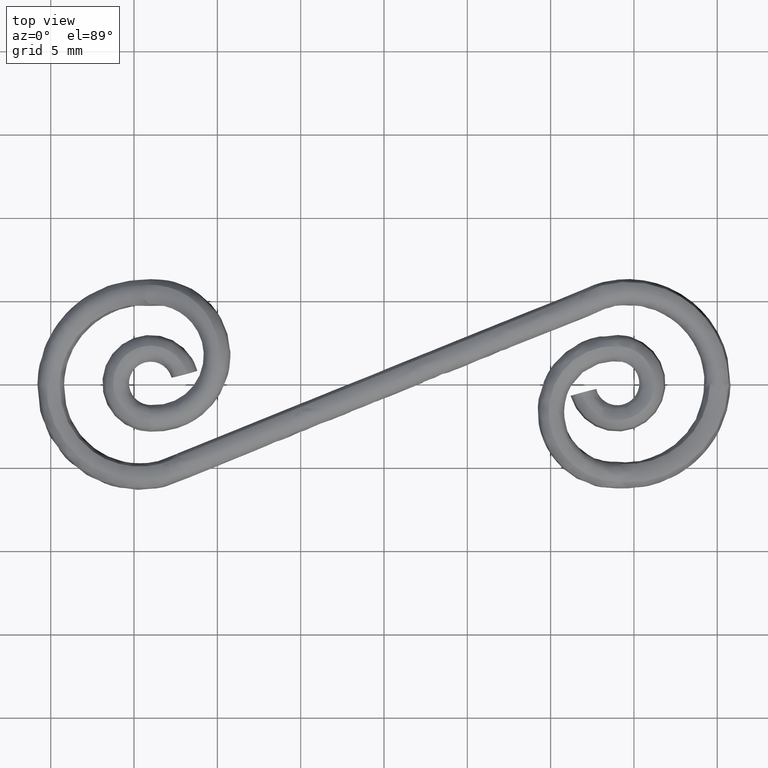
[diagram: clean part render]
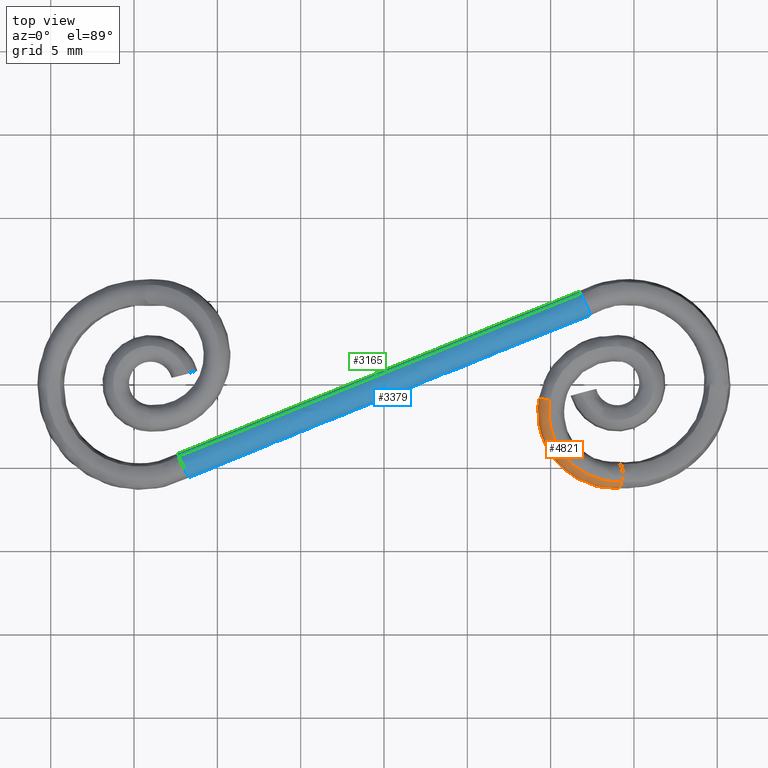
[diagram: same view with three faces highlighted in distinct colors, each labeled with its STEP entity id]
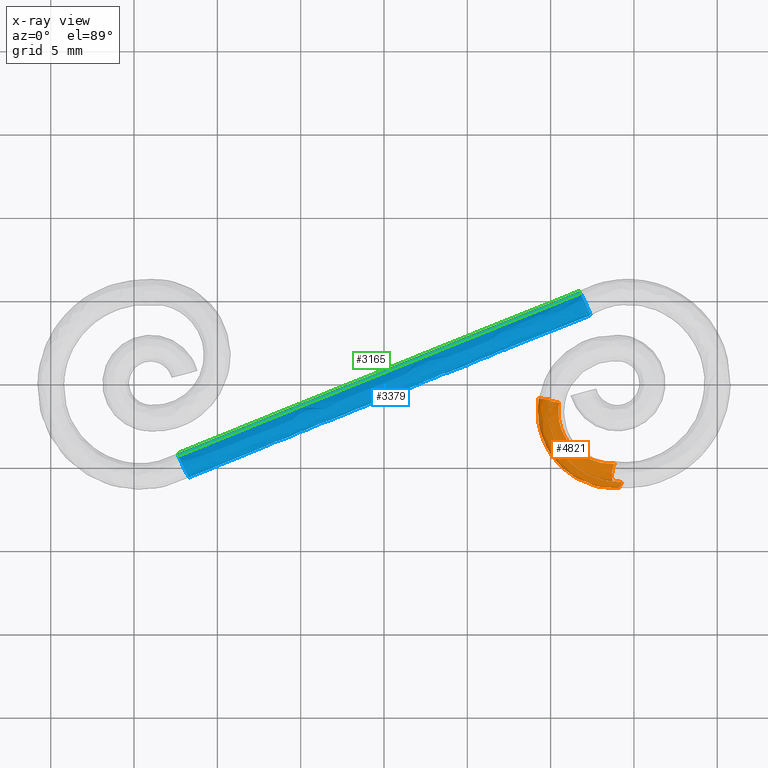
[diagram: x-ray of the same camera — body ghosted, the three highlighted faces saturated]
A machine part, top view with three faces highlighted in distinct colors.
The next image is the same camera in x-ray (body ghosted, the three faces saturated) — at least one of them is partly hidden behind the body in this view.
Their STEP definitions:

[orange] entity #4821 — the highlighted face is a freeform B-spline surface patch.
#4263=CARTESIAN_POINT('',(14.275470363113760,-5.912738055771345,2.158219490846191));
#4264=VERTEX_POINT('',#4263);
#4286=CARTESIAN_POINT('',(13.684754157161381,-5.482536158725590,0.809404913310558));
#4287=VERTEX_POINT('',#4286);
#4288=CARTESIAN_POINT('',(13.684754157161381,-5.482536158725590,0.809404913310558));
#4289=CARTESIAN_POINT('',(13.684576490044400,-5.508610972948729,0.809483216526367));
#4290=CARTESIAN_POINT('',(13.684913665367670,-5.535095821323730,0.810740220724820));
#4291=CARTESIAN_POINT('',(13.686621256978000,-5.587092043873896,0.815593179759634));
#4292=CARTESIAN_POINT('',(13.687987090674371,-5.612810500074414,0.819181420768248));
#4293=CARTESIAN_POINT('',(13.693633051143090,-5.689120296228069,0.833458777378329));
#4294=CARTESIAN_POINT('',(13.699460241575199,-5.738866817549171,0.847657401204790));
#4295=CARTESIAN_POINT('',(13.715232803108590,-5.836111766803879,0.885393025158458));
#4296=CARTESIAN_POINT('',(13.724986976938011,-5.882325775637417,0.908470556163974));
#4297=CARTESIAN_POINT('',(13.742062595196950,-5.947268644175123,0.948566068072047));
#4298=CARTESIAN_POINT('',(13.748175190501270,-5.968236987429188,0.962875707515571));
#4299=CARTESIAN_POINT('',(13.761259741498280,-6.008787132893043,0.993422581257308));
#4300=CARTESIAN_POINT('',(13.768274633340340,-6.028471171746492,1.009759449826938));
#4301=CARTESIAN_POINT('',(13.790294700845250,-6.084365442708921,1.060924485932550));
#4302=CARTESIAN_POINT('',(13.806252888875919,-6.117537500731675,1.097858572765757));
#4303=CARTESIAN_POINT('',(13.840802904266420,-6.175469721706300,1.177531536587755));
#4304=CARTESIAN_POINT('',(13.859626653055630,-6.200345577159285,1.220799316240483));
#4305=CARTESIAN_POINT('',(13.898405704134420,-6.239821323833454,1.309678602287068));
#4306=CARTESIAN_POINT('',(13.918450346235010,-6.254709718710237,1.355499147493233));
#4307=CARTESIAN_POINT('',(13.949487908755970,-6.269872000916446,1.426270872896541));
#4308=CARTESIAN_POINT('',(13.960048620786431,-6.273724476730627,1.450321960684940));
#4309=CARTESIAN_POINT('',(13.981104141766600,-6.278826455437646,1.498215531692925));
#4310=CARTESIAN_POINT('',(13.991629372144059,-6.280103473677698,1.522127668021301));
#4311=CARTESIAN_POINT('',(14.023197621900660,-6.280142940505713,1.593760915133544));
#4312=CARTESIAN_POINT('',(14.044261512425340,-6.275150868271530,1.641443770238239));
#4313=CARTESIAN_POINT('',(14.086252567084410,-6.254214917638802,1.736252404460541));
#4314=CARTESIAN_POINT('',(14.106483226083760,-6.238589378446848,1.781805017277326));
#4315=CARTESIAN_POINT('',(14.135784306457380,-6.208119413688166,1.847610322012308));
#4316=CARTESIAN_POINT('',(14.145375528181130,-6.196779735228900,1.869120847475894));
#4317=CARTESIAN_POINT('',(14.164203677557600,-6.171719605563862,1.911287681759939));
#4318=CARTESIAN_POINT('',(14.173466963233070,-6.157941330521324,1.932002543118979));
#4319=CARTESIAN_POINT('',(14.200150267383631,-6.113872139848850,1.991581586394878));
#4320=CARTESIAN_POINT('',(14.216662163251859,-6.080671572023920,2.028326442699883));
#4321=CARTESIAN_POINT('',(14.239492837639100,-6.025084616136979,2.078941167698152));
#4322=CARTESIAN_POINT('',(14.246808729931001,-6.005487241684781,2.095124875973922));
#4323=CARTESIAN_POINT('',(14.260596555178900,-5.964677347328970,2.125550181861855));
#4324=CARTESIAN_POINT('',(14.267029893313071,-5.943599076822415,2.139707010588311));
#4325=CARTESIAN_POINT('',(14.273835235739050,-5.918825885883249,2.154635247839221));
#4326=CARTESIAN_POINT('',(14.274657222828930,-5.915788433258502,2.156437501620837));
#4327=CARTESIAN_POINT('',(14.275470363113760,-5.912738055771345,2.158219490846191));
#4328=B_SPLINE_CURVE_WITH_KNOTS('',3,(#4288,#4289,#4290,#4291,#4292,#4293,#4294,#4295,#4296,#4297,#4298,#4299,#4300,#4301,#4302,#4303,#4304,#4305,#4306,#4307,#4308,#4309,#4310,#4311,#4312,#4313,#4314,#4315,#4316,#4317,#4318,#4319,#4320,#4321,#4322,#4323,#4324,#4325,#4326,#4327),.UNSPECIFIED.,.F.,.U.,(4,2,2,2,2,2,2,2,2,2,2,2,2,2,2,2,2,2,2,4),(0.0,0.031249999999999,0.062499999999998,0.124999999999998,0.187499999999998,0.218749999999997,0.249999999999997,0.312499999999997,0.374999999999996,0.437499999999996,0.468749999999996,0.499999999999996,0.562499999999997,0.624999999999997,0.656249999999998,0.687499999999998,0.749999999999999,0.781249999999999,0.812499999999999,0.816845814477522),.UNSPECIFIED.);
#4329=EDGE_CURVE('',#4287,#4264,#4328,.T.);
#4331=CARTESIAN_POINT('',(13.840684331128390,-4.801297387071696,1.150698332511569));
#4332=VERTEX_POINT('',#4331);
#4333=CARTESIAN_POINT('',(13.684754157161381,-5.482536158725590,0.809404913310558));
#4334=CARTESIAN_POINT('',(13.684931051294550,-5.456491148885976,0.809326902138796));
#4335=CARTESIAN_POINT('',(13.685626106988691,-5.429970034962513,0.810415971550976));
#4336=CARTESIAN_POINT('',(13.688044846998830,-5.377385178200687,0.814936672056622));
#4337=CARTESIAN_POINT('',(13.689758752761080,-5.351360807713368,0.818346844103807));
#4338=CARTESIAN_POINT('',(13.696343763523460,-5.274365643543839,0.831872304532594));
#4339=CARTESIAN_POINT('',(13.702646150694189,-5.224327435628240,0.845252607326872));
#4340=CARTESIAN_POINT('',(13.715078362755690,-5.151282315620386,0.872119124862062));
#4341=CARTESIAN_POINT('',(13.719743070600190,-5.127212013674924,0.882261163929755));
#4342=CARTESIAN_POINT('',(13.729906249354309,-5.080809807998026,0.904469176541222));
#4343=CARTESIAN_POINT('',(13.735423558846060,-5.058351267461821,0.916575567432321));
#4344=CARTESIAN_POINT('',(13.747336120362251,-5.014930384948126,0.942808065143815));
#4345=CARTESIAN_POINT('',(13.753728466557240,-4.993963090899809,0.956927487191577));
#4346=CARTESIAN_POINT('',(13.767371443125070,-4.953491193660680,0.987140813699874));
#4347=CARTESIAN_POINT('',(13.774658069156009,-4.933900898794525,1.003314821049094));
#4348=CARTESIAN_POINT('',(13.797567269701959,-4.877994579103462,1.054270596624298));
#4349=CARTESIAN_POINT('',(13.814057262206440,-4.844841797142810,1.091078845239982));
#4350=CARTESIAN_POINT('',(13.834665970018939,-4.810746184746932,1.137215654856697));
#4351=CARTESIAN_POINT('',(13.837657842336091,-4.805965915184631,1.143916691624192));
#4352=CARTESIAN_POINT('',(13.840684331128390,-4.801297387071696,1.150698332511569));
#4353=B_SPLINE_CURVE_WITH_KNOTS('',3,(#4333,#4334,#4335,#4336,#4337,#4338,#4339,#4340,#4341,#4342,#4343,#4344,#4345,#4346,#4347,#4348,#4349,#4350,#4351,#4352),.UNSPECIFIED.,.F.,.U.,(4,2,2,2,2,2,2,2,2,4),(0.0,0.031250000000001,0.062500000000002,0.125000000000003,0.156250000000004,0.187500000000005,0.218750000000005,0.250000000000006,0.312500000000007,0.322954407043913),.UNSPECIFIED.);
#4354=EDGE_CURVE('',#4287,#4332,#4353,.T.);
#4539=CARTESIAN_POINT('',(13.894641327883310,-4.790216110945279,1.141790554161258));
#4540=CARTESIAN_POINT('',(13.855150042147869,-4.853286820181422,1.044567273155996));
#4541=CARTESIAN_POINT('',(13.766049679405370,-5.089223915174923,0.813911200427470));
#4542=CARTESIAN_POINT('',(13.756029653560031,-5.440697068019889,0.748756562652523));
#4543=CARTESIAN_POINT('',(13.810052083106321,-5.849329045955848,0.822025472271445));
#4544=CARTESIAN_POINT('',(13.930661849882300,-6.219953387153282,1.050977855705398));
#4545=CARTESIAN_POINT('',(14.207526670465450,-6.341613783331164,1.664542376160781));
#4546=CARTESIAN_POINT('',(14.346946581600429,-6.076951301898377,2.012847674050267));
#4547=CARTESIAN_POINT('',(14.384119974869799,-5.894701275059284,2.119194532314097));
#4548=CARTESIAN_POINT('',(13.865900255950381,-4.791710680751304,1.154456711804764));
#4549=CARTESIAN_POINT('',(13.826490067297289,-4.854777178214619,1.057197691407739));
#4550=CARTESIAN_POINT('',(13.737693075356800,-5.090698518054415,0.826407923512529));
#4551=CARTESIAN_POINT('',(13.728124978043301,-5.442148201423600,0.761054121348706));
#4552=CARTESIAN_POINT('',(13.782672831675240,-5.850752893565777,0.834091477171934));
#4553=CARTESIAN_POINT('',(13.903759151875651,-6.221352487351859,1.062833844054898));
#4554=CARTESIAN_POINT('',(14.180780405025400,-6.343004761581203,1.676329424856472));
#4555=CARTESIAN_POINT('',(14.319860009922509,-6.078359953759013,2.024784695317121));
#4556=CARTESIAN_POINT('',(14.356799063864770,-5.896122096804637,2.131234826655316));
#4557=CARTESIAN_POINT('',(13.837496113341359,-4.793187325781367,1.166974385079121));
#4558=CARTESIAN_POINT('',(13.798135999840870,-4.856251217838761,1.069693296619419));
#4559=CARTESIAN_POINT('',(13.709526330764760,-5.092162811118952,0.838820975751378));
#4560=CARTESIAN_POINT('',(13.700237286462320,-5.443597974785718,0.773344195243617));
#4561=CARTESIAN_POINT('',(13.755109574498940,-5.852185785751143,0.846238573194474));
#4562=CARTESIAN_POINT('',(13.876490152841191,-6.222770068307079,1.074851260849702));
#4563=CARTESIAN_POINT('',(14.153607998565221,-6.344417315827796,1.688304273413885));
#4564=CARTESIAN_POINT('',(14.292477474002069,-6.079783441098329,2.036852147688176));
#4565=CARTESIAN_POINT('',(14.329271830067070,-5.897553112981244,2.143366047215963));
#4566=CARTESIAN_POINT('',(13.680428013367850,-4.801344840541893,1.236194117717969));
#4567=CARTESIAN_POINT('',(13.639883038832460,-4.864470196954979,1.139435196165840));
#4568=CARTESIAN_POINT('',(13.546840999890090,-5.100611706364338,0.910516215646172));
#4569=CARTESIAN_POINT('',(13.530949096767580,-5.452389348982151,0.847949307494248));
#4570=CARTESIAN_POINT('',(13.578144725888020,-5.861375321741023,0.924226780279955));
#4571=CARTESIAN_POINT('',(13.692562665161990,-6.232320717815905,1.155907895036629));
#4572=CARTESIAN_POINT('',(13.967394966476871,-6.354086455721136,1.770368144416871));
#4573=CARTESIAN_POINT('',(14.111236453226381,-6.089194664543192,2.116724858972816));
#4574=CARTESIAN_POINT('',(14.151454601590460,-5.906786743709318,2.221729897136735));
#4575=CARTESIAN_POINT('',(13.570520713442660,-4.800216720132489,1.284630137678710));
#4576=CARTESIAN_POINT('',(13.527004777278380,-4.863385256354510,1.189180515500279));
#4577=CARTESIAN_POINT('',(13.422848861427850,-5.099688264532624,0.965159407754334));
#4578=CARTESIAN_POINT('',(13.390400724563269,-5.451706427984768,0.909888812775109));
#4579=CARTESIAN_POINT('',(13.418347637944960,-5.860972003292035,0.994649172453193));
#4580=CARTESIAN_POINT('',(13.515307220276229,-6.232170959204981,1.234024165039629));
#4581=CARTESIAN_POINT('',(13.784408673920380,-6.354019809722904,1.851009992398544));
#4582=CARTESIAN_POINT('',(13.940717153759399,-6.088946837237018,2.191872517435535));
#4583=CARTESIAN_POINT('',(13.989520236389380,-5.906414182458064,2.293094184939932));
#4584=CARTESIAN_POINT('',(13.090161965300480,-4.771471632041834,1.496323675971331));
#4585=CARTESIAN_POINT('',(13.038753479888641,-4.834162000457874,1.404352291010423));
#4586=CARTESIAN_POINT('',(12.905072845442740,-5.068676182819385,1.193342692199984));
#4587=CARTESIAN_POINT('',(12.828642034432351,-5.418029384588404,1.157455210249281));
#4588=CARTESIAN_POINT('',(12.805453531811100,-5.824196516382449,1.264750887921532));
#4589=CARTESIAN_POINT('',(12.856033904215780,-6.192585124267556,1.524565144050237));
#4590=CARTESIAN_POINT('',(13.109911025085429,-6.313511135453282,2.148260317047599));
#4591=CARTESIAN_POINT('',(13.299338865787281,-6.050444725405907,2.474527178507339));
#4592=CARTESIAN_POINT('',(13.370948367871460,-5.869293895008457,2.565698083646540));
#4593=CARTESIAN_POINT('',(12.734653039605821,-4.688388964459504,1.652996026868872));
#4594=CARTESIAN_POINT('',(12.677355849474800,-4.749729579178174,1.563619786918357));
#4595=CARTESIAN_POINT('',(12.521646555017821,-4.979194496994825,1.362318191792753));
#4596=CARTESIAN_POINT('',(12.412399889818129,-5.321025735627925,1.340892616885237));
#4597=CARTESIAN_POINT('',(12.351058819677149,-5.718447568016388,1.465002084678111));
#4598=CARTESIAN_POINT('',(12.367035280422289,-6.078904221182365,1.740066242603546));
#4599=CARTESIAN_POINT('',(12.609553434552049,-6.197226265646836,2.368767298432928));
#4600=CARTESIAN_POINT('',(12.823691936032599,-5.939823829257660,2.684144201731312));
#4601=CARTESIAN_POINT('',(12.912317509779109,-5.762573344124404,2.767816144776492));
#4602=CARTESIAN_POINT('',(11.963870897806389,-4.365817522520588,1.992678740192036));
#4603=CARTESIAN_POINT('',(11.893353311333540,-4.421626518886959,1.909128712159596));
#4604=CARTESIAN_POINT('',(11.688188745040931,-4.630398434030088,1.729621992673570));
#4605=CARTESIAN_POINT('',(11.505269145527009,-4.941403233173424,1.740663986578447));
#4606=CARTESIAN_POINT('',(11.358274024954440,-5.302985283173314,1.902521085875575));
#4607=CARTESIAN_POINT('',(11.296563336205001,-5.630935517729108,2.211821872157144));
#4608=CARTESIAN_POINT('',(11.513580245923229,-5.738586532647187,2.851761294089208));
#4609=CARTESIAN_POINT('',(11.783195238330480,-5.504396386405004,3.142689778122068));
#4610=CARTESIAN_POINT('',(11.910022600098550,-5.343130319648388,3.209526241586767));
#4611=CARTESIAN_POINT('',(11.570309401078269,-4.083496608446635,2.166120761355098));
#4612=CARTESIAN_POINT('',(11.492627259576420,-4.134313605803727,2.085728143107583));
#4613=CARTESIAN_POINT('',(11.260661318632261,-4.324411205736695,1.918032753457289));
#4614=CARTESIAN_POINT('',(11.037816062874940,-4.607596911193298,1.946669930477998));
#4615=CARTESIAN_POINT('',(10.844402365051909,-4.936835666545768,2.128983634464970));
#4616=CARTESIAN_POINT('',(10.740590629335321,-5.235450829431226,2.456838295634992));
#4617=CARTESIAN_POINT('',(10.943787700942011,-5.333472080471295,3.102868101672468));
#4618=CARTESIAN_POINT('',(11.243467168166820,-5.120229802210547,3.380547212007946));
#4619=CARTESIAN_POINT('',(11.390997277052490,-4.973388782342957,3.438260002605448));
#4620=CARTESIAN_POINT('',(10.948803096394141,-3.384794555529017,2.440017683776445));
#4621=CARTESIAN_POINT('',(10.859017604792900,-3.422004957462347,2.364958994272752));
#4622=CARTESIAN_POINT('',(10.581775145165130,-3.561202410959099,2.217216900399723));
#4623=CARTESIAN_POINT('',(10.291482144284981,-3.768562415753146,2.275578200368682));
#4624=CARTESIAN_POINT('',(10.019652041540491,-4.009644069785665,2.492449899685557));
#4625=CARTESIAN_POINT('',(9.844717697556725,-4.228301640987177,2.851648190633144));
#4626=CARTESIAN_POINT('',(10.024568662381689,-4.300075678227982,3.507966591895596));
#4627=CARTESIAN_POINT('',(10.375037149066070,-4.143930566358694,3.763263055396134));
#4628=CARTESIAN_POINT('',(10.557541124067731,-4.036407520985548,3.805562914183003));
#4629=CARTESIAN_POINT('',(10.722675485299339,-2.971798457820499,2.539671749386560));
#4630=CARTESIAN_POINT('',(10.628026693284561,-3.000396474847236,2.466756308434710));
#4631=CARTESIAN_POINT('',(10.332591502642950,-3.107376370760287,2.327031721416005));
#4632=CARTESIAN_POINT('',(10.015197120733969,-3.266742095324533,2.397336555755095));
#4633=CARTESIAN_POINT('',(9.711858316377366,-3.452024274933589,2.628094088426800));
#4634=CARTESIAN_POINT('',(9.508346042595429,-3.620072326225146,2.999886626376265));
#4635=CARTESIAN_POINT('',(9.678816364283120,-3.675233183990869,3.660339061752290));
#4636=CARTESIAN_POINT('',(10.049692598749010,-3.555228090083950,3.906641864126508));
#4637=CARTESIAN_POINT('',(10.246249542317511,-3.472591580917936,3.942748602610341));
#4638=CARTESIAN_POINT('',(10.501832417551720,-2.202959655741658,2.636996826606137));
#4639=CARTESIAN_POINT('',(10.402312405669591,-2.214604918981981,2.566228122044791));
#4640=CARTESIAN_POINT('',(10.088654928608610,-2.258167315376410,2.434534058475449));
#4641=CARTESIAN_POINT('',(9.744115283704646,-2.323060513291202,2.516801753345973));
#4642=CARTESIAN_POINT('',(9.409216837766005,-2.398506379549167,2.761467553945630));
#4643=CARTESIAN_POINT('',(9.177080517692303,-2.466934139883122,3.145874649127978));
#4644=CARTESIAN_POINT('',(9.338155341268331,-2.489393637724375,3.810467660837243));
#4645=CARTESIAN_POINT('',(9.729472524397519,-2.440527101958333,4.047762179959147));
#4646=CARTESIAN_POINT('',(9.940105228889179,-2.406877579922686,4.077665760093211));
#4647=CARTESIAN_POINT('',(10.463313834852510,-1.859462575522668,2.653971828662847));
#4648=CARTESIAN_POINT('',(10.362893236399771,-1.863291023625362,2.583600009449862));
#4649=CARTESIAN_POINT('',(10.045866879357449,-1.877611997182114,2.453390599492957));
#4650=CARTESIAN_POINT('',(9.696308784359850,-1.898944516574892,2.537869907749291));
#4651=CARTESIAN_POINT('',(9.355575829028496,-1.923745575507431,2.785106956209530));
#4652=CARTESIAN_POINT('',(9.118147758339051,-1.946239086238407,3.171846107359907));
#4653=CARTESIAN_POINT('',(9.277485787539465,-1.953620260370360,3.837204518268842));
#4654=CARTESIAN_POINT('',(9.672582056510805,-1.937555289627791,4.072833607491317));
#4655=CARTESIAN_POINT('',(9.885817022962351,-1.926493361767623,4.101590379890718));
#4656=CARTESIAN_POINT('',(10.489139877735010,-1.404955030038999,2.642590198443821));
#4657=CARTESIAN_POINT('',(10.389313858069720,-1.398489968588604,2.571956346261664));
#4658=CARTESIAN_POINT('',(10.074511808371740,-1.374304629715111,2.440766676211006));
#4659=CARTESIAN_POINT('',(9.728267422841695,-1.338274687145803,2.523785621014766));
#4660=CARTESIAN_POINT('',(9.391387170516751,-1.296384636985610,2.769324769669157));
#4661=CARTESIAN_POINT('',(9.157453561148747,-1.258390111334619,3.154523899388490));
#4662=CARTESIAN_POINT('',(9.317939024847751,-1.245915624705277,3.819376631867991));
#4663=CARTESIAN_POINT('',(9.710540234804590,-1.273045120564444,4.056105302401256));
#4664=CARTESIAN_POINT('',(9.922056984459420,-1.291727459309324,4.085619299004589));
#4665=CARTESIAN_POINT('',(10.499584728630120,-1.305206896381625,2.637987137729717));
#4666=CARTESIAN_POINT('',(10.400261990805671,-1.294914210588485,2.567131488785813));
#4667=CARTESIAN_POINT('',(10.087342667422091,-1.256410366549223,2.435112099548266));
#4668=CARTESIAN_POINT('',(9.743903027942828,-1.199050298391089,2.516894990234994));
#4669=CARTESIAN_POINT('',(9.410283683538340,-1.132361285593600,2.760997053824692));
#4670=CARTESIAN_POINT('',(9.179307718131829,-1.071874401600247,3.144892747179855));
#4671=CARTESIAN_POINT('',(9.340764182208451,-1.052016637686716,3.809317558916366));
#4672=CARTESIAN_POINT('',(9.731253465214188,-1.095207922572683,4.046976957563962));
#4673=CARTESIAN_POINT('',(9.941315882230596,-1.124950613488202,4.077131879874346));
#4674=CARTESIAN_POINT('',(10.525299948182271,-1.154223386992727,2.626654429310864));
#4675=CARTESIAN_POINT('',(10.426234210428900,-1.142421065396813,2.555685520323824));
#4676=CARTESIAN_POINT('',(10.114276294509230,-1.098269925838996,2.423242438398909));
#4677=CARTESIAN_POINT('',(9.772268880765891,-1.032497142548269,2.504394146581328));
#4678=CARTESIAN_POINT('',(9.440314694074941,-0.956027287468403,2.747762374442675));
#4679=CARTESIAN_POINT('',(9.210849022399929,-0.886669298865812,3.130992480693747));
#4680=CARTESIAN_POINT('',(9.372801303800205,-0.863899533871859,3.795198785520518));
#4681=CARTESIAN_POINT('',(9.762212136343237,-0.913425675210026,4.033333457755851));
#4682=CARTESIAN_POINT('',(9.971531905610174,-0.947530628246796,4.063815665252211));
#4683=CARTESIAN_POINT('',(10.529974254918690,-1.126787089803654,2.624594460305365));
#4684=CARTESIAN_POINT('',(10.430902834822890,-1.115018084784556,2.553628055529086));
#4685=CARTESIAN_POINT('',(10.118923662555130,-1.070991577108016,2.421194341285957));
#4686=CARTESIAN_POINT('',(9.776884584184483,-1.005404456855195,2.502360004083308));
#4687=CARTESIAN_POINT('',(9.444893583758935,-0.929150458615987,2.745744455773389));
#4688=CARTESIAN_POINT('',(9.215394522898826,-0.859988249692028,3.128989276652753));
#4689=CARTESIAN_POINT('',(9.377335845471091,-0.837282751246930,3.793200411039771));
#4690=CARTESIAN_POINT('',(9.766770522565926,-0.886669086799642,4.031324574970827));
#4691=CARTESIAN_POINT('',(9.976106711144725,-0.920677767677957,4.061799546469355));
#4692=CARTESIAN_POINT('',(10.534757472077450,-1.098714305499423,2.622486494430283));
#4693=CARTESIAN_POINT('',(10.435670394676301,-1.087037225472701,2.551526989835269));
#4694=CARTESIAN_POINT('',(10.123632650728650,-1.043354593944978,2.419119088156880));
#4695=CARTESIAN_POINT('',(9.781506318101181,-0.978279742482414,2.500323203943076));
#4696=CARTESIAN_POINT('',(9.449413873246160,-0.902621321425078,2.743752362237250));
#4697=CARTESIAN_POINT('',(9.219822803142295,-0.833999293858287,3.127037731630265));
#4698=CARTESIAN_POINT('',(9.381733921775403,-0.811471114055713,3.791262176906372));
#4699=CARTESIAN_POINT('',(9.771234301468535,-0.860471706440040,4.029357385673843));
#4700=CARTESIAN_POINT('',(9.980615734001390,-0.894214759604462,4.059812418142189));
#4701=B_SPLINE_SURFACE_WITH_KNOTS('',3,3,((#4539,#4548,#4557,#4566,#4575,#4584,#4593,#4602,#4611,#4620,#4629,#4638,#4647,#4656,#4665,#4674,#4683,#4692),(#4540,#4549,#4558,#4567,#4576,#4585,#4594,#4603,#4612,#4621,#4630,#4639,#4648,#4657,#4666,#4675,#4684,#4693),(#4541,#4550,#4559,#4568,#4577,#4586,#4595,#4604,#4613,#4622,#4631,#4640,#4649,#4658,#4667,#4676,#4685,#4694),(#4542,#4551,#4560,#4569,#4578,#4587,#4596,#4605,#4614,#4623,#4632,#4641,#4650,#4659,#4668,#4677,#4686,#4695),(#4543,#4552,#4561,#4570,#4579,#4588,#4597,#4606,#4615,#4624,#4633,#4642,#4651,#4660,#4669,#4678,#4687,#4696),(#4544,#4553,#4562,#4571,#4580,#4589,#4598,#4607,#4616,#4625,#4634,#4643,#4652,#4661,#4670,#4679,#4688,#4697),(#4545,#4554,#4563,#4572,#4581,#4590,#4599,#4608,#4617,#4626,#4635,#4644,#4653,#4662,#4671,#4680,#4689,#4698),(#4546,#4555,#4564,#4573,#4582,#4591,#4600,#4609,#4618,#4627,#4636,#4645,#4654,#4663,#4672,#4681,#4690,#4699),(#4547,#4556,#4565,#4574,#4583,#4592,#4601,#4610,#4619,#4628,#4637,#4646,#4655,#4664,#4673,#4682,#4691,#4700)),.UNSPECIFIED.,.F.,.F.,.U.,(4,1,2,1,1,4),(4,2,2,2,2,2,2,2,4),(0.0,0.368187140897765,0.996937479456354,1.625687818014943,2.254438156573532,2.898188360139503),(0.0,0.109988372905226,0.670888771615984,2.353589967748257,4.597191562591287,6.840793157434317,8.523494353566591,9.084394752277348,9.192630874048119),.UNSPECIFIED.);
#4702=CARTESIAN_POINT('',(9.282684114473470,-0.923350617557464,3.217396081615895));
#4703=VERTEX_POINT('',#4702);
#4704=CARTESIAN_POINT('',(10.513676460564820,-1.143521968190347,2.616905000033437));
#4705=VERTEX_POINT('',#4704);
#4706=CARTESIAN_POINT('',(9.282684114473470,-0.923350617557464,3.217396081615895));
#4707=CARTESIAN_POINT('',(9.284393471410823,-0.924282505267875,3.191397675883538));
#4708=CARTESIAN_POINT('',(9.287436445674933,-0.925445474761554,3.165060282524938));
#4709=CARTESIAN_POINT('',(9.296067311702984,-0.928165951323571,3.113570634881526));
#4710=CARTESIAN_POINT('',(9.301652022017734,-0.929728304030422,3.088206954885310));
#4711=CARTESIAN_POINT('',(9.322034644734202,-0.934993194110909,3.013205496741645));
#4712=CARTESIAN_POINT('',(9.340418147152501,-0.939266724288221,2.964644417163723));
#4713=CARTESIAN_POINT('',(9.386881283271949,-0.949357886877105,2.870433861863906));
#4714=CARTESIAN_POINT('',(9.414378799800854,-0.955047003249559,2.826048572100552));
#4715=CARTESIAN_POINT('',(9.461331661482269,-0.964414388401107,2.764199755471254));
#4716=CARTESIAN_POINT('',(9.477965608824727,-0.967682088388888,2.744332736526939));
#4717=CARTESIAN_POINT('',(9.513266926370232,-0.974517925103753,2.706148605410620));
#4718=CARTESIAN_POINT('',(9.532051285511635,-0.978107936283455,2.687736271717575));
#4719=CARTESIAN_POINT('',(9.590515990782665,-0.989143534768214,2.635973802800404));
#4720=CARTESIAN_POINT('',(9.632401806028099,-0.996873831954480,2.605957619772864));
#4721=CARTESIAN_POINT('',(9.721825127462742,-1.013059404118012,2.554651643379722));
#4722=CARTESIAN_POINT('',(9.769845843600786,-1.021599529300992,2.533189600907469));
#4723=CARTESIAN_POINT('',(9.867796435300242,-1.038744447100748,2.500451950932309));
#4724=CARTESIAN_POINT('',(9.917965901524250,-1.047395505733004,2.488922391279435));
#4725=CARTESIAN_POINT('',(9.995034987654710,-1.060491531662041,2.478982701405946));
#4726=CARTESIAN_POINT('',(10.021131936371949,-1.064893757440325,2.476914910369583));
#4727=CARTESIAN_POINT('',(10.072870636219109,-1.073556965170774,2.475403994993091));
#4728=CARTESIAN_POINT('',(10.098625814366370,-1.077837460704228,2.475936627422790));
#4729=CARTESIAN_POINT('',(10.175548039267600,-1.090525264485057,2.481407759362117));
#4730=CARTESIAN_POINT('',(10.226424315516271,-1.098786226625798,2.490276656927781));
#4731=CARTESIAN_POINT('',(10.326989034976100,-1.114841940856404,2.518783304107707));
#4732=CARTESIAN_POINT('',(10.375064426422171,-1.122381545492502,2.537868110567592));
#4733=CARTESIAN_POINT('',(10.444111030453330,-1.133012552462374,2.573208446737819));
#4734=CARTESIAN_POINT('',(10.466610334366811,-1.136442015465810,2.586118688061240));
#4735=CARTESIAN_POINT('',(10.497031095675601,-1.141028822539685,2.605585673404670));
#4736=CARTESIAN_POINT('',(10.505404505990130,-1.142285797013978,2.611167244362098));
#4737=CARTESIAN_POINT('',(10.513676460564820,-1.143521968190347,2.616905000033437));
#4738=B_SPLINE_CURVE_WITH_KNOTS('',3,(#4706,#4707,#4708,#4709,#4710,#4711,#4712,#4713,#4714,#4715,#4716,#4717,#4718,#4719,#4720,#4721,#4722,#4723,#4724,#4725,#4726,#4727,#4728,#4729,#4730,#4731,#4732,#4733,#4734,#4735,#4736,#4737),.UNSPECIFIED.,.F.,.U.,(4,2,2,2,2,2,2,2,2,2,2,2,2,2,2,4),(0.0,0.031250000000000,0.062500000000001,0.125000000000002,0.187500000000002,0.218750000000002,0.250000000000003,0.312500000000002,0.375000000000001,0.437500000000000,0.468750000000000,0.500000000000001,0.562500000000000,0.624999999999999,0.656249999999998,0.668263455900424),.UNSPECIFIED.);
#4739=EDGE_CURVE('',#4703,#4705,#4738,.T.);
#4740=ORIENTED_EDGE('',*,*,#4739,.T.);
#4741=CARTESIAN_POINT('',(13.840684331128390,-4.801297387071696,1.150698332511569));
#4742=CARTESIAN_POINT('',(13.828977485609370,-4.801905832908429,1.155857524535175));
#4743=CARTESIAN_POINT('',(13.817567702112450,-4.802498668345055,1.160885801701044));
#4744=CARTESIAN_POINT('',(13.675177957241070,-4.809893783777041,1.223636782293226));
#4745=CARTESIAN_POINT('',(13.564877702400929,-4.808819453229737,1.272245962531481));
#4746=CARTESIAN_POINT('',(13.324135418027531,-4.794277681031921,1.378340772408463));
#4747=CARTESIAN_POINT('',(13.204320347880170,-4.780262272821809,1.431143114479927));
#4748=CARTESIAN_POINT('',(12.848710878655750,-4.718350616628248,1.587859726706733));
#4749=CARTESIAN_POINT('',(12.616761898342110,-4.650477393917403,1.690079317951130));
#4750=CARTESIAN_POINT('',(11.954563120137401,-4.373379082335032,1.981909360883003));
#4751=CARTESIAN_POINT('',(11.560030686342330,-4.090378044250921,2.155779187271555));
#4752=CARTESIAN_POINT('',(10.936885418652770,-3.389833286452192,2.430398232913666));
#4753=CARTESIAN_POINT('',(10.710097228504690,-2.975668233772885,2.530343335327335));
#4754=CARTESIAN_POINT('',(10.520254909229561,-2.314717949010451,2.614006343521861));
#4755=CARTESIAN_POINT('',(10.481947617380060,-2.088093508873775,2.630888229345206));
#4756=CARTESIAN_POINT('',(10.462912034493710,-1.746328523523486,2.639277052813565));
#4757=CARTESIAN_POINT('',(10.462952199889600,-1.632091842630003,2.639259307364599));
#4758=CARTESIAN_POINT('',(10.475838318941380,-1.404047467324225,2.633580322192464));
#4759=CARTESIAN_POINT('',(10.486375286496690,-1.303813191892240,2.628936654980247));
#4760=CARTESIAN_POINT('',(10.509779671284310,-1.166397191346649,2.618622318998087));
#4761=CARTESIAN_POINT('',(10.511696265909150,-1.155145720489102,2.617777673814406));
#4762=CARTESIAN_POINT('',(10.513676460564820,-1.143521968190347,2.616905000033437));
#4763=B_SPLINE_CURVE_WITH_KNOTS('',3,(#4741,#4742,#4743,#4744,#4745,#4746,#4747,#4748,#4749,#4750,#4751,#4752,#4753,#4754,#4755,#4756,#4757,#4758,#4759,#4760,#4761,#4762),.UNSPECIFIED.,.F.,.U.,(4,2,2,2,2,2,2,2,2,2,4),(-0.005200533105918,0.0,0.062500000000000,0.125000000000000,0.250000000000000,0.500000000000000,0.750000000000000,0.875000000000000,0.937500000000000,1.0,1.005268698153531),.UNSPECIFIED.);
#4764=EDGE_CURVE('',#4332,#4705,#4763,.T.);
#4765=ORIENTED_EDGE('',*,*,#4764,.F.);
#4766=ORIENTED_EDGE('',*,*,#4354,.F.);
#4767=ORIENTED_EDGE('',*,*,#4329,.T.);
#4768=CARTESIAN_POINT('',(9.945481316624836,-1.013603917874896,4.066437259172098));
#4769=VERTEX_POINT('',#4768);
#4770=CARTESIAN_POINT('',(14.275470363113760,-5.912738055771345,2.158219490846191));
#4771=CARTESIAN_POINT('',(14.132664628892430,-5.919339339571399,2.221153783220365));
#4772=CARTESIAN_POINT('',(13.978450900088051,-5.918614848278135,2.289115559402369));
#4773=CARTESIAN_POINT('',(13.675889216197261,-5.900338504559620,2.422454065164894));
#4774=CARTESIAN_POINT('',(13.521465847525480,-5.882281837571183,2.490508220844976));
#4775=CARTESIAN_POINT('',(13.062578202201900,-5.802388773296038,2.692739330914957));
#4776=CARTESIAN_POINT('',(12.762477640845720,-5.714716257415278,2.824993189351059));
#4777=CARTESIAN_POINT('',(11.901120361192010,-5.354278323718911,3.204591971829779));
#4778=CARTESIAN_POINT('',(11.380662072626791,-4.983536171480462,3.433957036381697));
#4779=CARTESIAN_POINT('',(10.544788367792099,-4.043837712345083,3.802324958646613));
#4780=CARTESIAN_POINT('',(10.232520005277790,-3.478299453771943,3.939940915805321));
#4781=CARTESIAN_POINT('',(9.969321534304990,-2.561948352174317,4.055931667710235));
#4782=CARTESIAN_POINT('',(9.915765213252644,-2.245890135742274,4.079533709147446));
#4783=CARTESIAN_POINT('',(9.889179708842814,-1.768558107180647,4.091249669972286));
#4784=CARTESIAN_POINT('',(9.889236185439266,-1.608905467200725,4.091224702508876));
#4785=CARTESIAN_POINT('',(9.906443471634098,-1.304399975095367,4.083641325979706));
#4786=CARTESIAN_POINT('',(9.923324385142347,-1.152270190318441,4.076201856178484));
#4787=CARTESIAN_POINT('',(9.945481316624836,-1.013603917874896,4.066437259172098));
#4788=B_SPLINE_CURVE_WITH_KNOTS('',3,(#4770,#4771,#4772,#4773,#4774,#4775,#4776,#4777,#4778,#4779,#4780,#4781,#4782,#4783,#4784,#4785,#4786,#4787),.UNSPECIFIED.,.F.,.U.,(4,2,2,2,2,2,2,2,4),(0.003055653659334,0.062500000000000,0.125000000000000,0.250000000000000,0.500000000000000,0.750000000000000,0.875000000000000,0.937500000000000,0.994507981847346),.UNSPECIFIED.);
#4789=EDGE_CURVE('',#4264,#4769,#4788,.T.);
#4790=ORIENTED_EDGE('',*,*,#4789,.T.);
#4791=CARTESIAN_POINT('',(9.282684114473470,-0.923350617557464,3.217396081615895));
#4792=CARTESIAN_POINT('',(9.280976861064485,-0.922417198559043,3.243368745901354));
#4793=CARTESIAN_POINT('',(9.280533650297882,-0.921681014407856,3.269932114586529));
#4794=CARTESIAN_POINT('',(9.282243214184797,-0.920659283423144,3.322703605380643));
#4795=CARTESIAN_POINT('',(9.284368457609974,-0.920369724447849,3.348846208459274));
#4796=CARTESIAN_POINT('',(9.294377606026378,-0.920133694338340,3.426578652125638));
#4797=CARTESIAN_POINT('',(9.305850561302021,-0.920812308984766,3.477481617082491));
#4798=CARTESIAN_POINT('',(9.330394346965294,-0.923103522019722,3.552432439641163));
#4799=CARTESIAN_POINT('',(9.339824998591581,-0.924084294059405,3.577169919345759));
#4800=CARTESIAN_POINT('',(9.360793988405469,-0.926438536457236,3.625112927196724));
#4801=CARTESIAN_POINT('',(9.383951477145580,-0.929192390499100,3.671796261254093));
#4802=CARTESIAN_POINT('',(9.411517854980900,-0.932748950489456,3.715942055775823));
#4803=CARTESIAN_POINT('',(9.441385540724168,-0.936723246638552,3.758763418637139));
#4804=CARTESIAN_POINT('',(9.457576409287773,-0.938934498675549,3.779619693839603));
#4805=CARTESIAN_POINT('',(9.508861683992169,-0.946092894350014,3.839235377240476));
#4806=CARTESIAN_POINT('',(9.546454454635233,-0.951530002331858,3.874988605699576));
#4807=CARTESIAN_POINT('',(9.628017603616060,-0.963643678151427,3.939016508754129));
#4808=CARTESIAN_POINT('',(9.672489979278657,-0.970399399709290,3.967488721962418));
#4809=CARTESIAN_POINT('',(9.764791829487322,-0.984693548435985,4.014702335734270));
#4810=CARTESIAN_POINT('',(9.812769132518300,-0.992250876191731,4.033692185384326));
#4811=CARTESIAN_POINT('',(9.887602975442666,-1.004228638331235,4.054928070389503));
#4812=CARTESIAN_POINT('',(9.913167579774942,-1.008351764558939,4.060802309664616));
#4813=CARTESIAN_POINT('',(9.940960775021365,-1.012868537977151,4.065676660435051));
#4814=CARTESIAN_POINT('',(9.943220849588242,-1.013236074686827,4.066062277724410));
#4815=CARTESIAN_POINT('',(9.945481316624836,-1.013603917874896,4.066437259172098));
#4816=B_SPLINE_CURVE_WITH_KNOTS('',3,(#4791,#4792,#4793,#4794,#4795,#4796,#4797,#4798,#4799,#4800,#4801,#4802,#4803,#4804,#4805,#4806,#4807,#4808,#4809,#4810,#4811,#4812,#4813,#4814,#4815),.UNSPECIFIED.,.F.,.U.,(4,2,2,2,2,1,2,2,2,2,2,2,4),(0.0,0.031250000000001,0.062500000000002,0.125000000000004,0.156250000000005,0.187500000000006,0.218750000000007,0.250000000000008,0.312500000000008,0.375000000000009,0.437500000000009,0.468750000000009,0.471515581245946),.UNSPECIFIED.);
#4817=EDGE_CURVE('',#4703,#4769,#4816,.T.);
#4818=ORIENTED_EDGE('',*,*,#4817,.F.);
#4819=EDGE_LOOP('',(#4740,#4765,#4766,#4767,#4790,#4818));
#4820=FACE_OUTER_BOUND('',#4819,.T.);
#4821=ADVANCED_FACE('',(#4820),#4701,.T.);

[blue] entity #3379 — the highlighted face is a freeform B-spline surface patch.
#2724=CARTESIAN_POINT('',(-12.325774551633771,-4.324301510575296,0.119319441803952));
#2725=VERTEX_POINT('',#2724);
#2749=CARTESIAN_POINT('',(-12.125855336146660,-4.568570416594290,-1.135515015609702));
#2750=VERTEX_POINT('',#2749);
#2783=CARTESIAN_POINT('',(-11.984724717615601,-4.857029674987880,-1.195886295503100));
#2784=VERTEX_POINT('',#2783);
#2785=CARTESIAN_POINT('',(-12.125855336146660,-4.568570416594290,-1.135515015609702));
#2786=CARTESIAN_POINT('',(-12.123848323376450,-4.572538751407258,-1.137325837965559));
#2787=CARTESIAN_POINT('',(-12.121837494745551,-4.576520712255091,-1.139096830002623));
#2788=CARTESIAN_POINT('',(-12.097722282263170,-4.624348020649800,-1.159816663282414));
#2789=CARTESIAN_POINT('',(-12.075381677476530,-4.669372333450863,-1.173912884693553));
#2790=CARTESIAN_POINT('',(-12.041518029721070,-4.738667388123056,-1.187825338599607));
#2791=CARTESIAN_POINT('',(-12.030170816022940,-4.762061532681804,-1.191246425068542));
#2792=CARTESIAN_POINT('',(-12.007351730972720,-4.809471317911540,-1.195532808912073));
#2793=CARTESIAN_POINT('',(-11.995881617588180,-4.833487472698444,-1.196368649399992));
#2794=CARTESIAN_POINT('',(-11.984724717615601,-4.857029674987880,-1.195886295503100));
#2795=B_SPLINE_CURVE_WITH_KNOTS('',3,(#2785,#2786,#2787,#2788,#2789,#2790,#2791,#2792,#2793,#2794),.UNSPECIFIED.,.F.,.U.,(4,2,2,2,4),(0.869306679129947,0.874999999999999,0.937499999999999,0.968750000000000,1.0),.UNSPECIFIED.);
#2796=EDGE_CURVE('',#2750,#2784,#2795,.T.);
#2798=CARTESIAN_POINT('',(-12.009294347415350,-5.027530958382247,0.384198747593518));
#2799=VERTEX_POINT('',#2798);
#2800=CARTESIAN_POINT('',(-12.009294347415350,-5.027530958382247,0.384198747593518));
#2801=CARTESIAN_POINT('',(-12.001080651123990,-5.044314326775429,0.380347972418337));
#2802=CARTESIAN_POINT('',(-11.992883017328920,-5.060978234421370,0.375839664892347));
#2803=CARTESIAN_POINT('',(-11.973519724527799,-5.100132429623114,0.363606949017144));
#2804=CARTESIAN_POINT('',(-11.962308265758750,-5.122637042538645,0.355254446544403));
#2805=CARTESIAN_POINT('',(-11.929275269447480,-5.188436588822674,0.326790215980485));
#2806=CARTESIAN_POINT('',(-11.908084765124670,-5.229974072934382,0.303415463173281));
#2807=CARTESIAN_POINT('',(-11.877547359106600,-5.288756364825916,0.261705672322344));
#2808=CARTESIAN_POINT('',(-11.867578093659390,-5.307757940519636,0.246684682014886));
#2809=CARTESIAN_POINT('',(-11.848083000270490,-5.344503110373529,0.214271411534862));
#2810=CARTESIAN_POINT('',(-11.838626471346760,-5.362111716512294,0.196963093796987));
#2811=CARTESIAN_POINT('',(-11.811547347512469,-5.411884129690198,0.142658426827364));
#2812=CARTESIAN_POINT('',(-11.795003226506321,-5.441407217597423,0.103024614435962));
#2813=CARTESIAN_POINT('',(-11.772355800263490,-5.480406517177824,0.038622243669212));
#2814=CARTESIAN_POINT('',(-11.765137034194250,-5.492572629256832,0.016195833876711));
#2815=CARTESIAN_POINT('',(-11.751681674087150,-5.514692248702741,-0.029575415244456));
#2816=CARTESIAN_POINT('',(-11.745431101009540,-5.524673177160842,-0.052936055651502));
#2817=CARTESIAN_POINT('',(-11.728078197240871,-5.551447652520358,-0.124412419956759));
#2818=CARTESIAN_POINT('',(-11.718356122068631,-5.565114727261423,-0.173904153138137));
#2819=CARTESIAN_POINT('',(-11.702866915388221,-5.583468894721808,-0.276837701448106));
#2820=CARTESIAN_POINT('',(-11.697372488621330,-5.587807588927094,-0.328643183233325));
#2821=CARTESIAN_POINT('',(-11.692486715397370,-5.587132137428744,-0.406593660047314));
#2822=CARTESIAN_POINT('',(-11.691410019294450,-5.585723691958371,-0.432631339893473));
#2823=CARTESIAN_POINT('',(-11.690355988480560,-5.580550186928565,-0.484814634136827));
#2824=CARTESIAN_POINT('',(-11.690385274049159,-5.576754110546429,-0.511079292754587));
#2825=CARTESIAN_POINT('',(-11.692116795240560,-5.562067542253178,-0.588465588580662));
#2826=CARTESIAN_POINT('',(-11.695414310842080,-5.547923546533265,-0.638586436990458));
#2827=CARTESIAN_POINT('',(-11.706218664966320,-5.511104335552998,-0.735946422367521));
#2828=CARTESIAN_POINT('',(-11.713825957589460,-5.488182511172313,-0.783419671965936));
#2829=CARTESIAN_POINT('',(-11.732829607378349,-5.435318393954216,-0.871341984194453));
#2830=CARTESIAN_POINT('',(-11.744270894585350,-5.405210399859953,-0.912282332570720));
#2831=CARTESIAN_POINT('',(-11.764507278601160,-5.354244678252338,-0.968920304115042));
#2832=CARTESIAN_POINT('',(-11.771779915407580,-5.336254050626273,-0.987030129983358));
#2833=CARTESIAN_POINT('',(-11.786999349377179,-5.299195356013567,-1.020891209838214));
#2834=CARTESIAN_POINT('',(-11.802965523783611,-5.260873242173399,-1.052618730185417));
#2835=CARTESIAN_POINT('',(-11.820377144426850,-5.220112459176229,-1.080225695307515));
#2836=CARTESIAN_POINT('',(-11.838514581406820,-5.178130127056365,-1.105767623774171));
#2837=CARTESIAN_POINT('',(-11.847994947876510,-5.156418048944388,-1.117556699914911));
#2838=CARTESIAN_POINT('',(-11.877195395717930,-5.090224514489033,-1.149306886799727));
#2839=CARTESIAN_POINT('',(-11.897525708263791,-5.045006121254961,-1.165610438315251));
#2840=CARTESIAN_POINT('',(-11.929324870301350,-4.975539480636797,-1.182741584365881));
#2841=CARTESIAN_POINT('',(-11.940143751266829,-4.952108312628588,-1.187220439891376));
#2842=CARTESIAN_POINT('',(-11.962245616057739,-4.904662306127003,-1.193570207171850));
#2843=CARTESIAN_POINT('',(-11.973565675325110,-4.880577643838182,-1.195403877569423));
#2844=CARTESIAN_POINT('',(-11.984724717615601,-4.857029674987880,-1.195886295503100));
#2845=B_SPLINE_CURVE_WITH_KNOTS('',3,(#2800,#2801,#2802,#2803,#2804,#2805,#2806,#2807,#2808,#2809,#2810,#2811,#2812,#2813,#2814,#2815,#2816,#2817,#2818,#2819,#2820,#2821,#2822,#2823,#2824,#2825,#2826,#2827,#2828,#2829,#2830,#2831,#2832,#2833,#2834,#2835,#2836,#2837,#2838,#2839,#2840,#2841,#2842,#2843,#2844),.UNSPECIFIED.,.F.,.U.,(4,2,2,2,2,2,2,2,2,2,2,2,2,2,2,2,2,1,2,2,2,2,4),(0.070884485995485,0.093749999999999,0.124999999999999,0.187499999999999,0.218749999999999,0.249999999999999,0.312499999999998,0.343749999999998,0.374999999999999,0.437499999999999,0.499999999999999,0.531249999999999,0.562499999999999,0.625000000000000,0.687500000000000,0.750000000000000,0.781250000000000,0.812500000000000,0.843750000000000,0.875000000000000,0.937500000000000,0.968750000000000,1.0),.UNSPECIFIED.);
#2846=EDGE_CURVE('',#2799,#2784,#2845,.T.);
#3007=CARTESIAN_POINT('',(-12.086040098908420,-4.868183884986729,0.400741699780975));
#3008=VERTEX_POINT('',#3007);
#3009=CARTESIAN_POINT('',(-12.086040098908420,-4.868183884986729,0.400741699780975));
#3010=CARTESIAN_POINT('',(-12.074881115950021,-4.891731865955230,0.401224362961196));
#3011=CARTESIAN_POINT('',(-12.063454835681640,-4.915664721844362,0.400385282117925));
#3012=CARTESIAN_POINT('',(-12.040849626194600,-4.962683313860603,0.396154422347710));
#3013=CARTESIAN_POINT('',(-12.026553780703161,-4.992209106271538,0.391868517490869));
#3014=CARTESIAN_POINT('',(-12.012306188688800,-5.021376779428869,0.385611083528644));
#3015=CARTESIAN_POINT('',(-12.009294347415350,-5.027530958382247,0.384198747593518));
#3016=B_SPLINE_CURVE_WITH_KNOTS('',3,(#3009,#3010,#3011,#3012,#3013,#3014,#3015),.UNSPECIFIED.,.F.,.U.,(4,2,1,4),(0.0,0.031250000000000,0.062500000000000,0.070884485995485),.UNSPECIFIED.);
#3017=EDGE_CURVE('',#3008,#2799,#3016,.T.);
#3019=CARTESIAN_POINT('',(-12.086040098908420,-4.868183884986729,0.400741699780975));
#3020=CARTESIAN_POINT('',(-12.097197863835230,-4.844641997800866,0.400259132492224));
#3021=CARTESIAN_POINT('',(-12.108464746454491,-4.820681437781687,0.398430398494937));
#3022=CARTESIAN_POINT('',(-12.130424413758840,-4.773599813184636,0.392149354832287));
#3023=CARTESIAN_POINT('',(-12.152003375606631,-4.726955531647916,0.383278852122397));
#3024=CARTESIAN_POINT('',(-12.172850255760631,-4.681152234220851,0.369428961095996));
#3025=CARTESIAN_POINT('',(-12.193332376684650,-4.635767949382564,0.353098123511985));
#3026=CARTESIAN_POINT('',(-12.203443161461751,-4.613167011587829,0.343630393900988));
#3027=CARTESIAN_POINT('',(-12.232722567674040,-4.547117947993793,0.311941006999730));
#3028=CARTESIAN_POINT('',(-12.250887838326319,-4.505331420566227,0.286519973072337));
#3029=CARTESIAN_POINT('',(-12.284541499214260,-4.426197871929020,0.227189363033524));
#3030=CARTESIAN_POINT('',(-12.300148854232949,-4.388539107369839,0.192842151350735));
#3031=CARTESIAN_POINT('',(-12.317906588700421,-4.344272249307940,0.143656296650038));
#3032=CARTESIAN_POINT('',(-12.321934746712691,-4.334111426142964,0.131649290426789));
#3033=CARTESIAN_POINT('',(-12.325774551633771,-4.324301510575296,0.119319441803952));
#3034=B_SPLINE_CURVE_WITH_KNOTS('',3,(#3019,#3020,#3021,#3022,#3023,#3024,#3025,#3026,#3027,#3028,#3029,#3030,#3031,#3032,#3033),.UNSPECIFIED.,.F.,.U.,(4,2,1,2,2,2,2,4),(0.0,0.031250000000000,0.062500000000000,0.093750000000000,0.125000000000000,0.187499999999999,0.249999999999999,0.269468417583415),.UNSPECIFIED.);
#3035=EDGE_CURVE('',#3008,#2725,#3034,.T.);
#3107=CARTESIAN_POINT('',(11.804181994079260,5.424845913585041,0.123689405258838));
#3108=VERTEX_POINT('',#3107);
#3109=CARTESIAN_POINT('',(-12.325774551633771,-4.324301510575296,0.119319441803952));
#3110=CARTESIAN_POINT('',(-12.314724195366461,-4.319836879147645,0.120050186495931));
#3111=CARTESIAN_POINT('',(-12.303669448178310,-4.315370473673694,0.120781217826002));
#3112=CARTESIAN_POINT('',(-4.280168502359107,-1.073667345128051,0.651357776824148));
#3113=CARTESIAN_POINT('',(3.791583878451157,2.187536377923038,0.652083194868298));
#3114=CARTESIAN_POINT('',(11.804181994079260,5.424845913585041,0.123689405258838));
#3115=B_SPLINE_CURVE_WITH_KNOTS('',3,(#3109,#3110,#3111,#3112,#3113,#3114),.UNSPECIFIED.,.F.,.U.,(4,2,4),(-0.001378638934585,0.0,0.998629605175096),.UNSPECIFIED.);
#3116=EDGE_CURVE('',#2725,#3108,#3115,.T.);
#3118=CARTESIAN_POINT('',(11.862570261658661,5.123395040165829,-1.133292260719712));
#3119=VERTEX_POINT('',#3118);
#3154=CARTESIAN_POINT('',(-12.125855336146660,-4.568570416594290,-1.135515015609702));
#3155=CARTESIAN_POINT('',(-12.120008438813329,-4.566207574191475,-1.135128614633788));
#3156=CARTESIAN_POINT('',(-12.114163543283430,-4.563846084418097,-1.134742102710318));
#3157=CARTESIAN_POINT('',(-4.114020111708011,-1.331580117866263,-0.605709630714704));
#3158=CARTESIAN_POINT('',(3.868289163444777,1.893486085291250,-0.605354999986200));
#3159=CARTESIAN_POINT('',(11.862570261658661,5.123395040165829,-1.133292260719712));
#3160=B_SPLINE_CURVE_WITH_KNOTS('',3,(#3154,#3155,#3156,#3157,#3158,#3159),.UNSPECIFIED.,.F.,.U.,(4,2,4),(-0.000730310231099,0.0,0.999329354307208),.UNSPECIFIED.);
#3161=EDGE_CURVE('',#2750,#3119,#3160,.T.);
#3166=CARTESIAN_POINT('',(-12.477697861136990,-4.385680788172124,0.109273701341034));
#3167=CARTESIAN_POINT('',(-12.435725065237540,-4.515566763191050,0.268122200629681));
#3168=CARTESIAN_POINT('',(-12.366288487593961,-4.704112436777320,0.370049062152569));
#3169=CARTESIAN_POINT('',(-12.211693883656180,-5.092064257248961,0.402508340333308));
#3170=CARTESIAN_POINT('',(-12.127487825071700,-5.289081461722301,0.332840878186067));
#3171=CARTESIAN_POINT('',(-11.992803631312100,-5.577956237742790,0.061048231036812));
#3172=CARTESIAN_POINT('',(-11.943154858871541,-5.668034966743551,-0.139403300310823));
#3173=CARTESIAN_POINT('',(-11.907277249357220,-5.688613772347559,-0.556235426243321));
#3174=CARTESIAN_POINT('',(-11.921269340601061,-5.618987128108430,-0.770049238326359));
#3175=CARTESIAN_POINT('',(-12.005214932399980,-5.359215178070580,-1.087746236903654));
#3176=CARTESIAN_POINT('',(-12.074651510043561,-5.170669504484310,-1.189673098426542));
#3177=CARTESIAN_POINT('',(-12.198327193193780,-4.860308048106998,-1.215640520971133));
#3178=CARTESIAN_POINT('',(-12.247192726756721,-4.742827636040000,-1.194455347979814));
#3179=CARTESIAN_POINT('',(-12.293410505544101,-4.636266517958826,-1.146595558341964));
#3180=CARTESIAN_POINT('',(-12.415944654571801,-4.360730887010095,0.113357388040230));
#3181=CARTESIAN_POINT('',(-12.373954474593839,-4.490609838409280,0.272207036923110));
#3182=CARTESIAN_POINT('',(-12.304506742140701,-4.679151005162440,0.374134636104008));
#3183=CARTESIAN_POINT('',(-12.149908585484360,-5.067101390243411,0.406594149222985));
#3184=CARTESIAN_POINT('',(-12.065710150867901,-5.264121674998060,0.336926182909264));
#3185=CARTESIAN_POINT('',(-11.931055700962521,-5.553008468309060,0.065131568824386));
#3186=CARTESIAN_POINT('',(-11.881428865250440,-5.643096060318521,-0.135321413180329));
#3187=CARTESIAN_POINT('',(-11.845596872616740,-5.663693296328450,-0.552156555718102));
#3188=CARTESIAN_POINT('',(-11.859612363111500,-5.594076105995110,-0.765971915173576));
#3189=CARTESIAN_POINT('',(-11.943592723067461,-5.334318203196751,-1.083671212939340));
#3190=CARTESIAN_POINT('',(-12.013040455520599,-5.145777036443589,-1.185598812120238));
#3191=CARTESIAN_POINT('',(-12.136718980845639,-4.835416728378806,-1.211566422615419));
#3192=CARTESIAN_POINT('',(-12.185582196106340,-4.717935379657418,-1.190381096316756));
#3193=CARTESIAN_POINT('',(-12.231794737385171,-4.611372145486608,-1.142520960326948));
#3194=CARTESIAN_POINT('',(-12.354380701287070,-4.335857449095328,0.117428639094451));
#3195=CARTESIAN_POINT('',(-12.312431051686060,-4.465752775820626,0.276275607797255));
#3196=CARTESIAN_POINT('',(-12.243009326281420,-4.654304450097610,0.378201487127864));
#3197=CARTESIAN_POINT('',(-12.088419452652840,-5.042258181737180,0.410660452288680));
#3198=CARTESIAN_POINT('',(-12.004203243010259,-5.239271284919070,0.340993661241305));
#3199=CARTESIAN_POINT('',(-11.869479446321280,-5.528130060326340,0.069203632586592));
#3200=CARTESIAN_POINT('',(-11.819801465877740,-5.618196988534410,-0.131245967490448));
#3201=CARTESIAN_POINT('',(-11.783863119054301,-5.638751254686270,-0.548074077292404));
#3202=CARTESIAN_POINT('',(-11.797824055002399,-5.569112022897531,-0.761885829246176));
#3203=CARTESIAN_POINT('',(-11.881723354204400,-5.309321369446820,-1.079579766651842));
#3204=CARTESIAN_POINT('',(-11.951145079609040,-5.120769695169869,-1.181505645982452));
#3205=CARTESIAN_POINT('',(-12.074816978511910,-4.810406709858214,-1.207472818111105));
#3206=CARTESIAN_POINT('',(-12.123685598818669,-4.692927544916004,-1.186287849153305));
#3207=CARTESIAN_POINT('',(-12.169910351172319,-4.586369244336952,-1.138428520564643));
#3208=CARTESIAN_POINT('',(-4.269173768446555,-1.069223616204933,0.652086046724250));
#3209=CARTESIAN_POINT('',(-4.224194550591554,-1.197894918587230,0.811133350452157));
#3210=CARTESIAN_POINT('',(-4.152828848196530,-1.385661175613606,0.913187786776624));
#3211=CARTESIAN_POINT('',(-3.997619834768321,-1.773364758673805,0.945687722428775));
#3212=CARTESIAN_POINT('',(-3.914732274866011,-1.970914670900155,0.875933092591440));
#3213=CARTESIAN_POINT('',(-3.785192018771945,-2.261867731489110,0.603800334927420));
#3214=CARTESIAN_POINT('',(-3.739337009796790,-2.353479239578620,0.403097955076672));
#3215=CARTESIAN_POINT('',(-3.711348436191290,-2.377245420818445,-0.014255817246213));
#3216=CARTESIAN_POINT('',(-3.729387220491465,-2.309253745798780,-0.228337215002662));
#3217=CARTESIAN_POINT('',(-3.819345656201470,-2.051911141049210,-0.546431822450968));
#3218=CARTESIAN_POINT('',(-3.890711358596495,-1.864144884019080,-0.648486258775434));
#3219=CARTESIAN_POINT('',(-4.014878569339063,-1.553982017570919,-0.674486207297156));
#3220=CARTESIAN_POINT('',(-4.063343172515280,-1.436339619199506,-0.653274532839380));
#3221=CARTESIAN_POINT('',(-4.108655170070668,-1.329412541945252,-0.605354858533331));
#3222=CARTESIAN_POINT('',(3.813736878075362,2.196488232541062,0.652085738744166));
#3223=CARTESIAN_POINT('',(3.870764238174845,2.072684701518750,0.811133042472081));
#3224=CARTESIAN_POINT('',(3.949860849755019,1.888041938345715,0.913187512099269));
#3225=CARTESIAN_POINT('',(4.107532096592460,1.501333163358195,0.945687562224410));
#3226=CARTESIAN_POINT('',(4.185135818697350,1.301648439495720,0.875933012831229));
#3227=CARTESIAN_POINT('',(4.294061914174220,1.002366707268400,0.603800417031514));
#3228=CARTESIAN_POINT('',(4.324713538877674,0.904612625759756,0.403098117624911));
#3229=CARTESIAN_POINT('',(4.321087053562756,0.868073116059523,-0.014255540247535));
#3230=CARTESIAN_POINT('',(4.286831274826586,0.929512692076063,-0.228336904678749));
#3231=CARTESIAN_POINT('',(4.172776554620110,1.177119754113180,-0.546431512142091));
#3232=CARTESIAN_POINT('',(4.093679943039930,1.361762517286214,-0.648485981776787));
#3233=CARTESIAN_POINT('',(3.967542945563978,1.671129537276227,-0.674486021864885));
#3234=CARTESIAN_POINT('',(3.920685055990231,1.789421090869275,-0.653274390096555));
#3235=CARTESIAN_POINT('',(3.879002945867477,1.897814739622836,-0.605354761930235));
#3236=CARTESIAN_POINT('',(11.898939789156760,5.463131994268465,0.117428176233288));
#3237=CARTESIAN_POINT('',(11.958996716004121,5.340552491314729,0.276275144936100));
#3238=CARTESIAN_POINT('',(12.040037304559540,5.156695148166150,0.378201074341163));
#3239=CARTESIAN_POINT('',(12.198327694171001,4.770236523846901,0.410660211525628));
#3240=CARTESIAN_POINT('',(12.274602769487320,4.570014990236110,0.340993541368320));
#3241=CARTESIAN_POINT('',(12.378345331574460,4.268638968335210,0.069203755991962));
#3242=CARTESIAN_POINT('',(12.405173989002460,4.169340303172240,-0.131245723195019));
#3243=CARTESIAN_POINT('',(12.393597737689941,4.129588869945200,-0.548073660973172));
#3244=CARTESIAN_POINT('',(12.355264113568539,4.189380884556975,-0.761885362852681));
#3245=CARTESIAN_POINT('',(12.235150259873899,4.434539890464495,-1.079579300258246));
#3246=CARTESIAN_POINT('',(12.154109671318460,4.618397233613080,-1.181505229663250));
#3247=CARTESIAN_POINT('',(12.027477359629330,4.927564133068480,-1.207472539410917));
#3248=CARTESIAN_POINT('',(11.981023485762030,5.046018920086645,-1.186287634616436));
#3249=CARTESIAN_POINT('',(11.940254128664151,5.154781346099167,-1.138428375375344));
#3250=CARTESIAN_POINT('',(11.960503711951331,5.488005507842686,0.113356926362373));
#3251=CARTESIAN_POINT('',(12.020520108441859,5.365409629513020,0.272206575245262));
#3252=CARTESIAN_POINT('',(12.101534689954461,5.181541778805720,0.374134224372475));
#3253=CARTESIAN_POINT('',(12.259816796517139,4.795079807907530,0.406593909075409));
#3254=CARTESIAN_POINT('',(12.336109646833300,4.594865455884250,0.336926063342742));
#3255=CARTESIAN_POINT('',(12.439921555634200,4.293517451957915,0.065131691914207));
#3256=CARTESIAN_POINT('',(12.466801357750761,4.194239450652139,-0.135321169509464));
#3257=CARTESIAN_POINT('',(12.455331460550161,4.154530987403669,-0.552156140463301));
#3258=CARTESIAN_POINT('',(12.417052390941180,4.214345043535025,-0.765971449972480));
#3259=CARTESIAN_POINT('',(12.297019597960061,4.459536800194336,-1.083670747738254));
#3260=CARTESIAN_POINT('',(12.216005016447481,4.643404650901641,-1.185598396865466));
#3261=CARTESIAN_POINT('',(12.089379331197289,4.952574227620184,-1.211566144627813));
#3262=CARTESIAN_POINT('',(12.042920052295990,5.071026830856358,-1.190380882328407));
#3263=CARTESIAN_POINT('',(12.002138484139451,5.179784323266224,-1.142520815508859));
#3264=CARTESIAN_POINT('',(12.022256887865810,5.512955484867740,0.109273239663182));
#3265=CARTESIAN_POINT('',(12.082290668426220,5.390366630179170,0.268121738951837));
#3266=CARTESIAN_POINT('',(12.163316404742821,5.206503286318680,0.370048650421042));
#3267=CARTESIAN_POINT('',(12.321602064022359,4.820042750815549,0.402508100185734));
#3268=CARTESIAN_POINT('',(12.397887290374239,4.619825318501579,0.332840758619548));
#3269=CARTESIAN_POINT('',(12.501669455335721,4.318465297248215,0.061048354126635));
#3270=CARTESIAN_POINT('',(12.528527320734661,4.219178432906765,-0.139403056639953));
#3271=CARTESIAN_POINT('',(12.517011806676100,4.179451539196355,-0.556235010988516));
#3272=CARTESIAN_POINT('',(12.478709337827761,4.239256141393150,-0.770048773125255));
#3273=CARTESIAN_POINT('',(12.358641776706939,4.484433850770296,-1.087745771702566));
#3274=CARTESIAN_POINT('',(12.277616040390340,4.668297194630790,-1.189672683171770));
#3275=CARTESIAN_POINT('',(12.150987512966710,4.977465623033293,-1.215640242983525));
#3276=CARTESIAN_POINT('',(12.104530552366491,5.095919162926698,-1.194455133991461));
#3277=CARTESIAN_POINT('',(12.063754221715890,5.204678771432635,-1.146595413523870));
#3278=B_SPLINE_SURFACE_WITH_KNOTS('',3,3,((#3166,#3180,#3194,#3208,#3222,#3236,#3250,#3264),(#3167,#3181,#3195,#3209,#3223,#3237,#3251,#3265),(#3168,#3182,#3196,#3210,#3224,#3238,#3252,#3266),(#3169,#3183,#3197,#3211,#3225,#3239,#3253,#3267),(#3170,#3184,#3198,#3212,#3226,#3240,#3254,#3268),(#3171,#3185,#3199,#3213,#3227,#3241,#3255,#3269),(#3172,#3186,#3200,#3214,#3228,#3242,#3256,#3270),(#3173,#3187,#3201,#3215,#3229,#3243,#3257,#3271),(#3174,#3188,#3202,#3216,#3230,#3244,#3258,#3272),(#3175,#3189,#3203,#3217,#3231,#3245,#3259,#3273),(#3176,#3190,#3204,#3218,#3232,#3246,#3260,#3274),(#3177,#3191,#3205,#3219,#3233,#3247,#3261,#3275),(#3178,#3192,#3206,#3220,#3234,#3248,#3262,#3276),(#3179,#3193,#3207,#3221,#3235,#3249,#3263,#3277)),.UNSPECIFIED.,.F.,.F.,.U.,(4,2,2,2,2,2,4),(4,2,2,4),(0.0,0.628318669916118,1.256637339832236,1.884956009748354,2.513274679664472,3.141593349580590,3.518584551530260),(0.0,0.200862267426579,26.290421778461081,26.491284045887632),.UNSPECIFIED.);
#3279=ORIENTED_EDGE('',*,*,#2796,.F.);
#3280=ORIENTED_EDGE('',*,*,#3161,.T.);
#3281=CARTESIAN_POINT('',(11.986571532985719,4.853143183080780,-1.195901423469472));
#3282=VERTEX_POINT('',#3281);
#3283=CARTESIAN_POINT('',(11.986571532985719,4.853143183080780,-1.195901423469472));
#3284=CARTESIAN_POINT('',(11.975414967014240,4.876684781817341,-1.195418849302951));
#3285=CARTESIAN_POINT('',(11.964096978213790,4.900760683954453,-1.193604286777007));
#3286=CARTESIAN_POINT('',(11.941999591776341,4.948169716708917,-1.187428030414537));
#3287=CARTESIAN_POINT('',(11.931169210121791,4.971604215914050,-1.183086493321143));
#3288=CARTESIAN_POINT('',(11.900477214356281,5.038574184661234,-1.167074101584985));
#3289=CARTESIAN_POINT('',(11.881145986602251,5.081453796128312,-1.152358597073373));
#3290=CARTESIAN_POINT('',(11.862570261658661,5.123395040165829,-1.133292260719712));
#3291=B_SPLINE_CURVE_WITH_KNOTS('',3,(#3283,#3284,#3285,#3286,#3287,#3288,#3289,#3290),.UNSPECIFIED.,.F.,.U.,(4,2,2,4),(0.0,0.031249999999999,0.062499999999998,0.121550763342009),.UNSPECIFIED.);
#3292=EDGE_CURVE('',#3282,#3119,#3291,.T.);
#3293=ORIENTED_EDGE('',*,*,#3292,.F.);
#3294=CARTESIAN_POINT('',(12.335542621358631,4.187754795405872,-0.706233112849517));
#3295=VERTEX_POINT('',#3294);
#3296=CARTESIAN_POINT('',(11.986571532985719,4.853143183080780,-1.195901423469472));
#3297=CARTESIAN_POINT('',(11.997733521848600,4.829591598140865,-1.196384245454469));
#3298=CARTESIAN_POINT('',(12.009234182626020,4.805512455715206,-1.195551308233016));
#3299=CARTESIAN_POINT('',(12.031968012587090,4.758296979755976,-1.191181229328328));
#3300=CARTESIAN_POINT('',(12.043280642481550,4.734989472688007,-1.187672627245842));
#3301=CARTESIAN_POINT('',(12.077064259885709,4.665920170663584,-1.173385417903976));
#3302=CARTESIAN_POINT('',(12.099382781640720,4.621001606731620,-1.158889441258943));
#3303=CARTESIAN_POINT('',(12.143611900317209,4.533420288953717,-1.119952691205571));
#3304=CARTESIAN_POINT('',(12.164951345457750,4.491893112495737,-1.095981994247635));
#3305=CARTESIAN_POINT('',(12.195512890362361,4.433514107527078,-1.053861968757565));
#3306=CARTESIAN_POINT('',(12.205475325862830,4.414675334478630,-1.038768295594275));
#3307=CARTESIAN_POINT('',(12.224935093283991,4.378282678698056,-1.006400471474356));
#3308=CARTESIAN_POINT('',(12.234483089113340,4.360637539751557,-0.989017191334385));
#3309=CARTESIAN_POINT('',(12.261848931646909,4.310729587211124,-0.934458541502657));
#3310=CARTESIAN_POINT('',(12.278466078954789,4.281345380645505,-0.894774151421467));
#3311=CARTESIAN_POINT('',(12.308536954135331,4.230137063423320,-0.808964953309276));
#3312=CARTESIAN_POINT('',(12.322107137285711,4.208133748421866,-0.762371818515325));
#3313=CARTESIAN_POINT('',(12.334259728866080,4.189688816509972,-0.711678289004206));
#3314=CARTESIAN_POINT('',(12.334904334587570,4.188714807295816,-0.708958342032068));
#3315=CARTESIAN_POINT('',(12.335542621358631,4.187754795405872,-0.706233112849517));
#3316=B_SPLINE_CURVE_WITH_KNOTS('',3,(#3296,#3297,#3298,#3299,#3300,#3301,#3302,#3303,#3304,#3305,#3306,#3307,#3308,#3309,#3310,#3311,#3312,#3313,#3314,#3315),.UNSPECIFIED.,.F.,.U.,(4,2,2,2,2,2,2,2,2,4),(0.0,0.031250000000001,0.062500000000001,0.125000000000002,0.187500000000004,0.218750000000004,0.250000000000004,0.312500000000004,0.375000000000003,0.378536426788726),.UNSPECIFIED.);
#3317=EDGE_CURVE('',#3282,#3295,#3316,.T.);
#3318=ORIENTED_EDGE('',*,*,#3317,.T.);
#3319=CARTESIAN_POINT('',(12.084178302908700,4.872104406510360,0.400757161455091));
#3320=VERTEX_POINT('',#3319);
#3321=CARTESIAN_POINT('',(12.335542621358631,4.187754795405872,-0.706233112849517));
#3322=CARTESIAN_POINT('',(12.346186960298590,4.171744423650784,-0.660796658351899));
#3323=CARTESIAN_POINT('',(12.355106818372860,4.159564194063967,-0.613920825281504));
#3324=CARTESIAN_POINT('',(12.366081280059060,4.146865039895398,-0.539970446389851));
#3325=CARTESIAN_POINT('',(12.369392846760521,4.143568770212963,-0.513842325060314));
#3326=CARTESIAN_POINT('',(12.374861881854260,4.139370068990931,-0.461829107622554));
#3327=CARTESIAN_POINT('',(12.377040605979831,4.138439252087824,-0.435827754224103));
#3328=CARTESIAN_POINT('',(12.381905003878041,4.139161639676659,-0.357839501495644));
#3329=CARTESIAN_POINT('',(12.382899140509460,4.144382286033396,-0.305789905615369));
#3330=CARTESIAN_POINT('',(12.380215790448080,4.164600510771916,-0.202055123114213));
#3331=CARTESIAN_POINT('',(12.376622768084840,4.179191277723033,-0.152000851671948));
#3332=CARTESIAN_POINT('',(12.368103907916501,4.207306880933133,-0.079439659711513));
#3333=CARTESIAN_POINT('',(12.364737485927551,4.217727436997852,-0.055676857743348));
#3334=CARTESIAN_POINT('',(12.356931297718500,4.240705233619270,-0.009015679822188));
#3335=CARTESIAN_POINT('',(12.352478413697989,4.253293317944588,0.013905804390968));
#3336=CARTESIAN_POINT('',(12.337774770060641,4.293498544849094,0.079903592092811));
#3337=CARTESIAN_POINT('',(12.326121939926839,4.323752349307138,0.120751425321062));
#3338=CARTESIAN_POINT('',(12.305771438592510,4.374486991602668,0.177134193621832));
#3339=CARTESIAN_POINT('',(12.298465181761109,4.392394718717777,0.195190771996548));
#3340=CARTESIAN_POINT('',(12.283009009605260,4.429679328380185,0.229126989332362));
#3341=CARTESIAN_POINT('',(12.274910948508660,4.448935667061114,0.244925115324546));
#3342=CARTESIAN_POINT('',(12.249572165544659,4.508438396366236,0.289016080492868));
#3343=CARTESIAN_POINT('',(12.231298913130191,4.550398469637587,0.314043673306009));
#3344=CARTESIAN_POINT('',(12.201842486435821,4.616735331454092,0.345112944676956));
#3345=CARTESIAN_POINT('',(12.191688171609220,4.639396538711696,0.354351848865795));
#3346=CARTESIAN_POINT('',(12.171128897209140,4.684885913176354,0.370263612756541));
#3347=CARTESIAN_POINT('',(12.150213188547390,4.730781543460217,0.383728421224207));
#3348=CARTESIAN_POINT('',(12.128591115520500,4.777482287369179,0.392343904930553));
#3349=CARTESIAN_POINT('',(12.106605765554299,4.824597096428668,0.398465413797110));
#3350=CARTESIAN_POINT('',(12.095340204211050,4.848552772992179,0.400274686957508));
#3351=CARTESIAN_POINT('',(12.084178302908700,4.872104406510360,0.400757161455091));
#3352=B_SPLINE_CURVE_WITH_KNOTS('',3,(#3321,#3322,#3323,#3324,#3325,#3326,#3327,#3328,#3329,#3330,#3331,#3332,#3333,#3334,#3335,#3336,#3337,#3338,#3339,#3340,#3341,#3342,#3343,#3344,#3345,#3346,#3347,#3348,#3349,#3350,#3351),.UNSPECIFIED.,.F.,.U.,(4,2,2,2,2,2,2,2,2,2,2,2,2,1,2,4),(0.378536426788726,0.437500000000003,0.468750000000003,0.500000000000003,0.562500000000003,0.625000000000003,0.656250000000003,0.687500000000003,0.750000000000003,0.781250000000003,0.812500000000003,0.875000000000002,0.906250000000002,0.937500000000001,0.968750000000001,1.0),.UNSPECIFIED.);
#3353=EDGE_CURVE('',#3295,#3320,#3352,.T.);
#3354=ORIENTED_EDGE('',*,*,#3353,.T.);
#3355=CARTESIAN_POINT('',(11.804181994079260,5.424845913585041,0.123689405258838));
#3356=CARTESIAN_POINT('',(11.811839530945260,5.411149987452061,0.141799689163391));
#3357=CARTESIAN_POINT('',(11.819816295103459,5.396676664753339,0.159173153859258));
#3358=CARTESIAN_POINT('',(11.846133339607670,5.348303391982659,0.211954338760657));
#3359=CARTESIAN_POINT('',(11.865807128047511,5.311237297599271,0.244819561957394));
#3360=CARTESIAN_POINT('',(11.906446715714139,5.233110695991710,0.301075002486918));
#3361=CARTESIAN_POINT('',(11.927575772766710,5.191761463828811,0.324877406574257));
#3362=CARTESIAN_POINT('',(11.960511719349780,5.126253543354437,0.353981286420460));
#3363=CARTESIAN_POINT('',(11.971710638162561,5.103806364119354,0.362562662354210));
#3364=CARTESIAN_POINT('',(11.994053426535300,5.058683707589814,0.377096220725309));
#3365=CARTESIAN_POINT('',(12.016459548214030,5.013098651928086,0.389115579655520));
#3366=CARTESIAN_POINT('',(12.038993816141719,4.966584173818676,0.396079294489509));
#3367=CARTESIAN_POINT('',(12.061594837644311,4.919585679492353,0.400410130186192));
#3368=CARTESIAN_POINT('',(12.073022751727351,4.895646707783027,0.401239469722364));
#3369=CARTESIAN_POINT('',(12.084178302908700,4.872104406510360,0.400757161455091));
#3370=B_SPLINE_CURVE_WITH_KNOTS('',3,(#3355,#3356,#3357,#3358,#3359,#3360,#3361,#3362,#3363,#3364,#3365,#3366,#3367,#3368,#3369),.UNSPECIFIED.,.F.,.U.,(4,2,2,2,2,1,2,4),(0.721228459015510,0.749999999999998,0.812499999999999,0.874999999999999,0.906249999999999,0.937500000000000,0.968750000000000,1.0),.UNSPECIFIED.);
#3371=EDGE_CURVE('',#3108,#3320,#3370,.T.);
#3372=ORIENTED_EDGE('',*,*,#3371,.F.);
#3373=ORIENTED_EDGE('',*,*,#3116,.F.);
#3374=ORIENTED_EDGE('',*,*,#3035,.F.);
#3375=ORIENTED_EDGE('',*,*,#3017,.T.);
#3376=ORIENTED_EDGE('',*,*,#2846,.T.);
#3377=EDGE_LOOP('',(#3279,#3280,#3293,#3318,#3354,#3372,#3373,#3374,#3375,#3376));
#3378=FACE_OUTER_BOUND('',#3377,.T.);
#3379=ADVANCED_FACE('',(#3378),#3278,.T.);

[green] entity #3165 — the highlighted face is a freeform B-spline surface patch.
#2724=CARTESIAN_POINT('',(-12.325774551633771,-4.324301510575296,0.119319441803952));
#2725=VERTEX_POINT('',#2724);
#2749=CARTESIAN_POINT('',(-12.125855336146660,-4.568570416594290,-1.135515015609702));
#2750=VERTEX_POINT('',#2749);
#2751=CARTESIAN_POINT('',(-12.325774551633771,-4.324301510575296,0.119319441803952));
#2752=CARTESIAN_POINT('',(-12.334261032224280,-4.302618200912295,0.092066343208230));
#2753=CARTESIAN_POINT('',(-12.341827294426020,-4.282649262054719,0.063235982965768));
#2754=CARTESIAN_POINT('',(-12.353321200396239,-4.251098063593194,0.010782781527465));
#2755=CARTESIAN_POINT('',(-12.357695764160960,-4.238660559310898,-0.012235180497684));
#2756=CARTESIAN_POINT('',(-12.365326130482091,-4.216027544370803,-0.059065772729236));
#2757=CARTESIAN_POINT('',(-12.368597932603571,-4.205793194488535,-0.082915262941116));
#2758=CARTESIAN_POINT('',(-12.376835841954049,-4.178231755800012,-0.155724242951624));
#2759=CARTESIAN_POINT('',(-12.380246377450870,-4.163992738523398,-0.205996994470035));
#2760=CARTESIAN_POINT('',(-12.382687690767170,-4.144277133153216,-0.309756544739452));
#2761=CARTESIAN_POINT('',(-12.381686094499230,-4.139087325977028,-0.361687100878860));
#2762=CARTESIAN_POINT('',(-12.376841975399490,-4.138322122141611,-0.439659296730062));
#2763=CARTESIAN_POINT('',(-12.374662286691411,-4.139253836129444,-0.465662939084305));
#2764=CARTESIAN_POINT('',(-12.369132769326489,-4.143575219895080,-0.517696962686024));
#2765=CARTESIAN_POINT('',(-12.365768236050000,-4.146982695371233,-0.543820783701160));
#2766=CARTESIAN_POINT('',(-12.354180684659710,-4.160583737029842,-0.620515046891177));
#2767=CARTESIAN_POINT('',(-12.344442983068650,-4.174122942821471,-0.669953358554999));
#2768=CARTESIAN_POINT('',(-12.321104819930641,-4.209783888738206,-0.765584177681522));
#2769=CARTESIAN_POINT('',(-12.307391817790350,-4.232119510041176,-0.811939519941142));
#2770=CARTESIAN_POINT('',(-12.277135450549419,-4.283750237558166,-0.897498796652279));
#2771=CARTESIAN_POINT('',(-12.260490853536750,-4.313185578971150,-0.937220352709611));
#2772=CARTESIAN_POINT('',(-12.233087235407410,-4.363155643425126,-0.991888580065204));
#2773=CARTESIAN_POINT('',(-12.223547628847969,-4.380786869461768,-1.009240751840095));
#2774=CARTESIAN_POINT('',(-12.204078501684410,-4.417219380528759,-1.041456534415373));
#2775=CARTESIAN_POINT('',(-12.184118948426759,-4.454999595608619,-1.071424386497675));
#2776=CARTESIAN_POINT('',(-12.163219014426801,-4.495364061402495,-1.097081800522208));
#2777=CARTESIAN_POINT('',(-12.143798226225760,-4.533218727655834,-1.118455282694481));
#2778=CARTESIAN_POINT('',(-12.134865222979100,-4.550757288235811,-1.127386442279747));
#2779=CARTESIAN_POINT('',(-12.125855336146660,-4.568570416594290,-1.135515015609702));
#2780=B_SPLINE_CURVE_WITH_KNOTS('',3,(#2751,#2752,#2753,#2754,#2755,#2756,#2757,#2758,#2759,#2760,#2761,#2762,#2763,#2764,#2765,#2766,#2767,#2768,#2769,#2770,#2771,#2772,#2773,#2774,#2775,#2776,#2777,#2778,#2779),.UNSPECIFIED.,.F.,.U.,(4,2,2,2,2,2,2,2,2,2,2,2,1,2,4),(0.269468417583415,0.312499999999999,0.343749999999999,0.374999999999999,0.437499999999998,0.499999999999998,0.531249999999998,0.562499999999998,0.624999999999998,0.687499999999998,0.749999999999998,0.781249999999998,0.812499999999998,0.843749999999999,0.869306679129946),.UNSPECIFIED.);
#2781=EDGE_CURVE('',#2725,#2750,#2780,.T.);
#3041=CARTESIAN_POINT('',(-12.293410505544101,-4.636266517958826,-1.146595558341964));
#3042=CARTESIAN_POINT('',(-12.324222358069010,-4.565225772571377,-1.114689031916731));
#3043=CARTESIAN_POINT('',(-12.353857430693679,-4.499038046733184,-1.070927120315262));
#3044=CARTESIAN_POINT('',(-12.448136366325400,-4.296825703518844,-0.880672267310784));
#3045=CARTESIAN_POINT('',(-12.497785138765961,-4.206746974518080,-0.680220735963150));
#3046=CARTESIAN_POINT('',(-12.533662748280300,-4.186168168914064,-0.263388610030653));
#3047=CARTESIAN_POINT('',(-12.519670657036441,-4.255794813153200,-0.049574797947613));
#3048=CARTESIAN_POINT('',(-12.477697861136990,-4.385680788172124,0.109273701341034));
#3049=CARTESIAN_POINT('',(-12.231794737385171,-4.611372145486608,-1.142520960326948));
#3050=CARTESIAN_POINT('',(-12.262603098237729,-4.540329989372735,-1.110614203000410));
#3051=CARTESIAN_POINT('',(-12.292233381765019,-4.474140328614674,-1.066851974700029));
#3052=CARTESIAN_POINT('',(-12.386491496698779,-4.271919573296980,-0.876595744840615));
#3053=CARTESIAN_POINT('',(-12.436118332410841,-4.181831981287504,-0.676142762835901));
#3054=CARTESIAN_POINT('',(-12.471950325044521,-4.161234745277575,-0.259307620298127));
#3055=CARTESIAN_POINT('',(-12.457934834549761,-4.230851935610910,-0.045492260842650));
#3056=CARTESIAN_POINT('',(-12.415944654571801,-4.360730887010095,0.113357388040230));
#3057=CARTESIAN_POINT('',(-12.169910351172319,-4.586369244336952,-1.138428520564643));
#3058=CARTESIAN_POINT('',(-12.200726852741409,-4.515330377284252,-1.106522301505535));
#3059=CARTESIAN_POINT('',(-12.230368301886900,-4.449145227726288,-1.062760811499378));
#3060=CARTESIAN_POINT('',(-12.324674959569140,-4.246944084941219,-0.872507791441120));
#3061=CARTESIAN_POINT('',(-12.374352940012740,-4.156877156733035,-0.672058191364140));
#3062=CARTESIAN_POINT('',(-12.410291286836159,-4.136322890581201,-0.255230081562184));
#3063=CARTESIAN_POINT('',(-12.396330350888080,-4.205962122370030,-0.041418329608352));
#3064=CARTESIAN_POINT('',(-12.354380701287070,-4.335857449095328,0.117428639094451));
#3065=CARTESIAN_POINT('',(-4.108655170070668,-1.329412541945252,-0.605354858533331));
#3066=CARTESIAN_POINT('',(-4.138863168440928,-1.258127823775749,-0.573408408995965));
#3067=CARTESIAN_POINT('',(-4.167670008757486,-1.191605470547206,-0.529591737303811));
#3068=CARTESIAN_POINT('',(-4.258348188028585,-0.987938328132306,-0.339098806933740));
#3069=CARTESIAN_POINT('',(-4.304203196996229,-0.896326820057819,-0.138396427075482));
#3070=CARTESIAN_POINT('',(-4.332191770601741,-0.872560638814239,0.278957345247402));
#3071=CARTESIAN_POINT('',(-4.314152986301555,-0.940552313822637,0.493038742996343));
#3072=CARTESIAN_POINT('',(-4.269173768446555,-1.069223616204933,0.652086046724250));
#3073=CARTESIAN_POINT('',(3.879002945867477,1.897814739622836,-0.605354761930235));
#3074=CARTESIAN_POINT('',(3.851214872452307,1.970077172125210,-0.573408343152688));
#3075=CARTESIAN_POINT('',(3.825727145459801,2.037940535810034,-0.529591703753813));
#3076=CARTESIAN_POINT('',(3.749478878620735,2.247437748356016,-0.339098886694013));
#3077=CARTESIAN_POINT('',(3.718827253917280,2.345191829875925,-0.138396587279901));
#3078=CARTESIAN_POINT('',(3.722453739239715,2.381731339572405,0.278957070577526));
#3079=CARTESIAN_POINT('',(3.756709517975880,2.320291763563375,0.493038435016250));
#3080=CARTESIAN_POINT('',(3.813736878075362,2.196488232541062,0.652085738744166));
#3081=CARTESIAN_POINT('',(11.940254128664151,5.154781346099167,-1.138428375375344));
#3082=CARTESIAN_POINT('',(11.913074557265560,5.227289630107514,-1.106522202547950));
#3083=CARTESIAN_POINT('',(11.888421437764480,5.295490198113352,-1.062760761077617));
#3084=CARTESIAN_POINT('',(11.815801644303519,5.506453413444080,-0.872507911314168));
#3085=CARTESIAN_POINT('',(11.788972986875519,5.605752078606960,-0.672058432127246));
#3086=CARTESIAN_POINT('',(11.800549238187999,5.645503511834031,-0.255230494348975));
#3087=CARTESIAN_POINT('',(11.838882862309401,5.585711497222200,-0.041418792469524));
#3088=CARTESIAN_POINT('',(11.898939789156760,5.463131994268465,0.117428176233288));
#3089=CARTESIAN_POINT('',(12.002138484139451,5.179784323266224,-1.142520815508859));
#3090=CARTESIAN_POINT('',(11.974950772035090,5.252289318206135,-1.110614104295827));
#3091=CARTESIAN_POINT('',(11.950286486928411,5.320485375001020,-1.066851924407176));
#3092=CARTESIAN_POINT('',(11.877618150767720,5.531428977749430,-0.876595864407199));
#3093=CARTESIAN_POINT('',(11.850738348651159,5.630706979055220,-0.676143002983531));
#3094=CARTESIAN_POINT('',(11.862208245851820,5.670415442303710,-0.259308032029695));
#3095=CARTESIAN_POINT('',(11.900487315460801,5.610601386172350,-0.045492722520516));
#3096=CARTESIAN_POINT('',(11.960503711951331,5.488005507842686,0.113356926362373));
#3097=CARTESIAN_POINT('',(12.063754221715890,5.204678771432635,-1.146595413523870));
#3098=CARTESIAN_POINT('',(12.036570001282159,5.277185177103259,-1.114688933212142));
#3099=CARTESIAN_POINT('',(12.011910505270480,5.345383168823898,-1.070927070022403));
#3100=CARTESIAN_POINT('',(11.939262989797440,5.556335183701251,-0.880672386877364));
#3101=CARTESIAN_POINT('',(11.912405124398500,5.655622048042700,-0.680220976110778));
#3102=CARTESIAN_POINT('',(11.923920638457080,5.695348941753109,-0.263389021762213));
#3103=CARTESIAN_POINT('',(11.962223107305400,5.635544339556310,-0.049575259625474));
#3104=CARTESIAN_POINT('',(12.022256887865810,5.512955484867740,0.109273239663182));
#3105=B_SPLINE_SURFACE_WITH_KNOTS('',3,3,((#3041,#3049,#3057,#3065,#3073,#3081,#3089,#3097),(#3042,#3050,#3058,#3066,#3074,#3082,#3090,#3098),(#3043,#3051,#3059,#3067,#3075,#3083,#3091,#3099),(#3044,#3052,#3060,#3068,#3076,#3084,#3092,#3100),(#3045,#3053,#3061,#3069,#3077,#3085,#3093,#3101),(#3046,#3054,#3062,#3070,#3078,#3086,#3094,#3102),(#3047,#3055,#3063,#3071,#3079,#3087,#3095,#3103),(#3048,#3056,#3064,#3072,#3080,#3088,#3096,#3104)),.UNSPECIFIED.,.F.,.F.,.U.,(4,2,2,4),(4,2,2,4),(0.0,0.251327467966447,0.879646137882563,1.507964807798680),(0.0,0.200569965469908,26.252163016245600,26.452732981715471),.UNSPECIFIED.);
#3106=ORIENTED_EDGE('',*,*,#2781,.F.);
#3107=CARTESIAN_POINT('',(11.804181994079260,5.424845913585041,0.123689405258838));
#3108=VERTEX_POINT('',#3107);
#3109=CARTESIAN_POINT('',(-12.325774551633771,-4.324301510575296,0.119319441803952));
#3110=CARTESIAN_POINT('',(-12.314724195366461,-4.319836879147645,0.120050186495931));
#3111=CARTESIAN_POINT('',(-12.303669448178310,-4.315370473673694,0.120781217826002));
#3112=CARTESIAN_POINT('',(-4.280168502359107,-1.073667345128051,0.651357776824148));
#3113=CARTESIAN_POINT('',(3.791583878451157,2.187536377923038,0.652083194868298));
#3114=CARTESIAN_POINT('',(11.804181994079260,5.424845913585041,0.123689405258838));
#3115=B_SPLINE_CURVE_WITH_KNOTS('',3,(#3109,#3110,#3111,#3112,#3113,#3114),.UNSPECIFIED.,.F.,.U.,(4,2,4),(-0.001378638934585,0.0,0.998629605175096),.UNSPECIFIED.);
#3116=EDGE_CURVE('',#2725,#3108,#3115,.T.);
#3117=ORIENTED_EDGE('',*,*,#3116,.T.);
#3118=CARTESIAN_POINT('',(11.862570261658661,5.123395040165829,-1.133292260719712));
#3119=VERTEX_POINT('',#3118);
#3120=CARTESIAN_POINT('',(11.862570261658661,5.123395040165829,-1.133292260719712));
#3121=CARTESIAN_POINT('',(11.861485222511121,5.125844897424710,-1.132178578433881));
#3122=CARTESIAN_POINT('',(11.860402760862719,5.128291553422841,-1.131050052368426));
#3123=CARTESIAN_POINT('',(11.849539185000120,5.152872600502978,-1.119547566815471));
#3124=CARTESIAN_POINT('',(11.839997481587011,5.174683524877249,-1.107967710067758));
#3125=CARTESIAN_POINT('',(11.821759263330010,5.216821907451992,-1.082813212368073));
#3126=CARTESIAN_POINT('',(11.804261130897400,5.257713729088857,-1.055558801265789));
#3127=CARTESIAN_POINT('',(11.788252543701240,5.296090058783755,-1.024069103548299));
#3128=CARTESIAN_POINT('',(11.773020269792660,5.333151530488482,-0.990366900711053));
#3129=CARTESIAN_POINT('',(11.765756843696780,5.351116409951044,-0.972293978838191));
#3130=CARTESIAN_POINT('',(11.745459420222200,5.402223019855859,-0.915555604968619));
#3131=CARTESIAN_POINT('',(11.733937420137950,5.432497642401180,-0.874636208235287));
#3132=CARTESIAN_POINT('',(11.714646736371041,5.485928564431420,-0.787000260538645));
#3133=CARTESIAN_POINT('',(11.706841184632850,5.509238420158800,-0.739757292409724));
#3134=CARTESIAN_POINT('',(11.695635787298210,5.546868278496961,-0.642690822693711));
#3135=CARTESIAN_POINT('',(11.692146636968060,5.561400515977129,-0.592707887576331));
#3136=CARTESIAN_POINT('',(11.690224102777940,5.576474450659354,-0.515457806348723));
#3137=CARTESIAN_POINT('',(11.690146764423449,5.580374419984185,-0.489182429873313));
#3138=CARTESIAN_POINT('',(11.691158504462139,5.585648699392000,-0.436924410895168));
#3139=CARTESIAN_POINT('',(11.692241440683089,5.587047479776990,-0.410861373967324));
#3140=CARTESIAN_POINT('',(11.697132288928820,5.587719294539431,-0.332860002031027));
#3141=CARTESIAN_POINT('',(11.702562056171271,5.583510726216161,-0.281107105425118));
#3142=CARTESIAN_POINT('',(11.717763930977179,5.565778976928489,-0.178097675986057));
#3143=CARTESIAN_POINT('',(11.727325391156700,5.552494846129011,-0.128316291822037));
#3144=CARTESIAN_POINT('',(11.744426324659869,5.526297414403143,-0.056547932932584));
#3145=CARTESIAN_POINT('',(11.750594467584270,5.516505477293438,-0.033089462715218));
#3146=CARTESIAN_POINT('',(11.763901345895830,5.494727030105824,0.012865346181307));
#3147=CARTESIAN_POINT('',(11.771063940794839,5.482696418146828,0.035408003484994));
#3148=CARTESIAN_POINT('',(11.786667236185540,5.455888177113852,0.080215563370362));
#3149=CARTESIAN_POINT('',(11.795205265520320,5.440901215311517,0.102458772332030));
#3150=CARTESIAN_POINT('',(11.804181994079260,5.424845913585041,0.123689405258838));
#3151=B_SPLINE_CURVE_WITH_KNOTS('',3,(#3120,#3121,#3122,#3123,#3124,#3125,#3126,#3127,#3128,#3129,#3130,#3131,#3132,#3133,#3134,#3135,#3136,#3137,#3138,#3139,#3140,#3141,#3142,#3143,#3144,#3145,#3146,#3147,#3148,#3149,#3150),.UNSPECIFIED.,.F.,.U.,(4,2,2,1,2,2,2,2,2,2,2,2,2,2,2,4),(0.121550763342009,0.124999999999997,0.156249999999997,0.187499999999997,0.218749999999996,0.249999999999996,0.312499999999997,0.374999999999997,0.437499999999997,0.468749999999998,0.499999999999998,0.562499999999998,0.624999999999998,0.656249999999998,0.687499999999998,0.721228459015510),.UNSPECIFIED.);
#3152=EDGE_CURVE('',#3119,#3108,#3151,.T.);
#3153=ORIENTED_EDGE('',*,*,#3152,.F.);
#3154=CARTESIAN_POINT('',(-12.125855336146660,-4.568570416594290,-1.135515015609702));
#3155=CARTESIAN_POINT('',(-12.120008438813329,-4.566207574191475,-1.135128614633788));
#3156=CARTESIAN_POINT('',(-12.114163543283430,-4.563846084418097,-1.134742102710318));
#3157=CARTESIAN_POINT('',(-4.114020111708011,-1.331580117866263,-0.605709630714704));
#3158=CARTESIAN_POINT('',(3.868289163444777,1.893486085291250,-0.605354999986200));
#3159=CARTESIAN_POINT('',(11.862570261658661,5.123395040165829,-1.133292260719712));
#3160=B_SPLINE_CURVE_WITH_KNOTS('',3,(#3154,#3155,#3156,#3157,#3158,#3159),.UNSPECIFIED.,.F.,.U.,(4,2,4),(-0.000730310231099,0.0,0.999329354307208),.UNSPECIFIED.);
#3161=EDGE_CURVE('',#2750,#3119,#3160,.T.);
#3162=ORIENTED_EDGE('',*,*,#3161,.F.);
#3163=EDGE_LOOP('',(#3106,#3117,#3153,#3162));
#3164=FACE_OUTER_BOUND('',#3163,.T.);
#3165=ADVANCED_FACE('',(#3164),#3105,.T.);